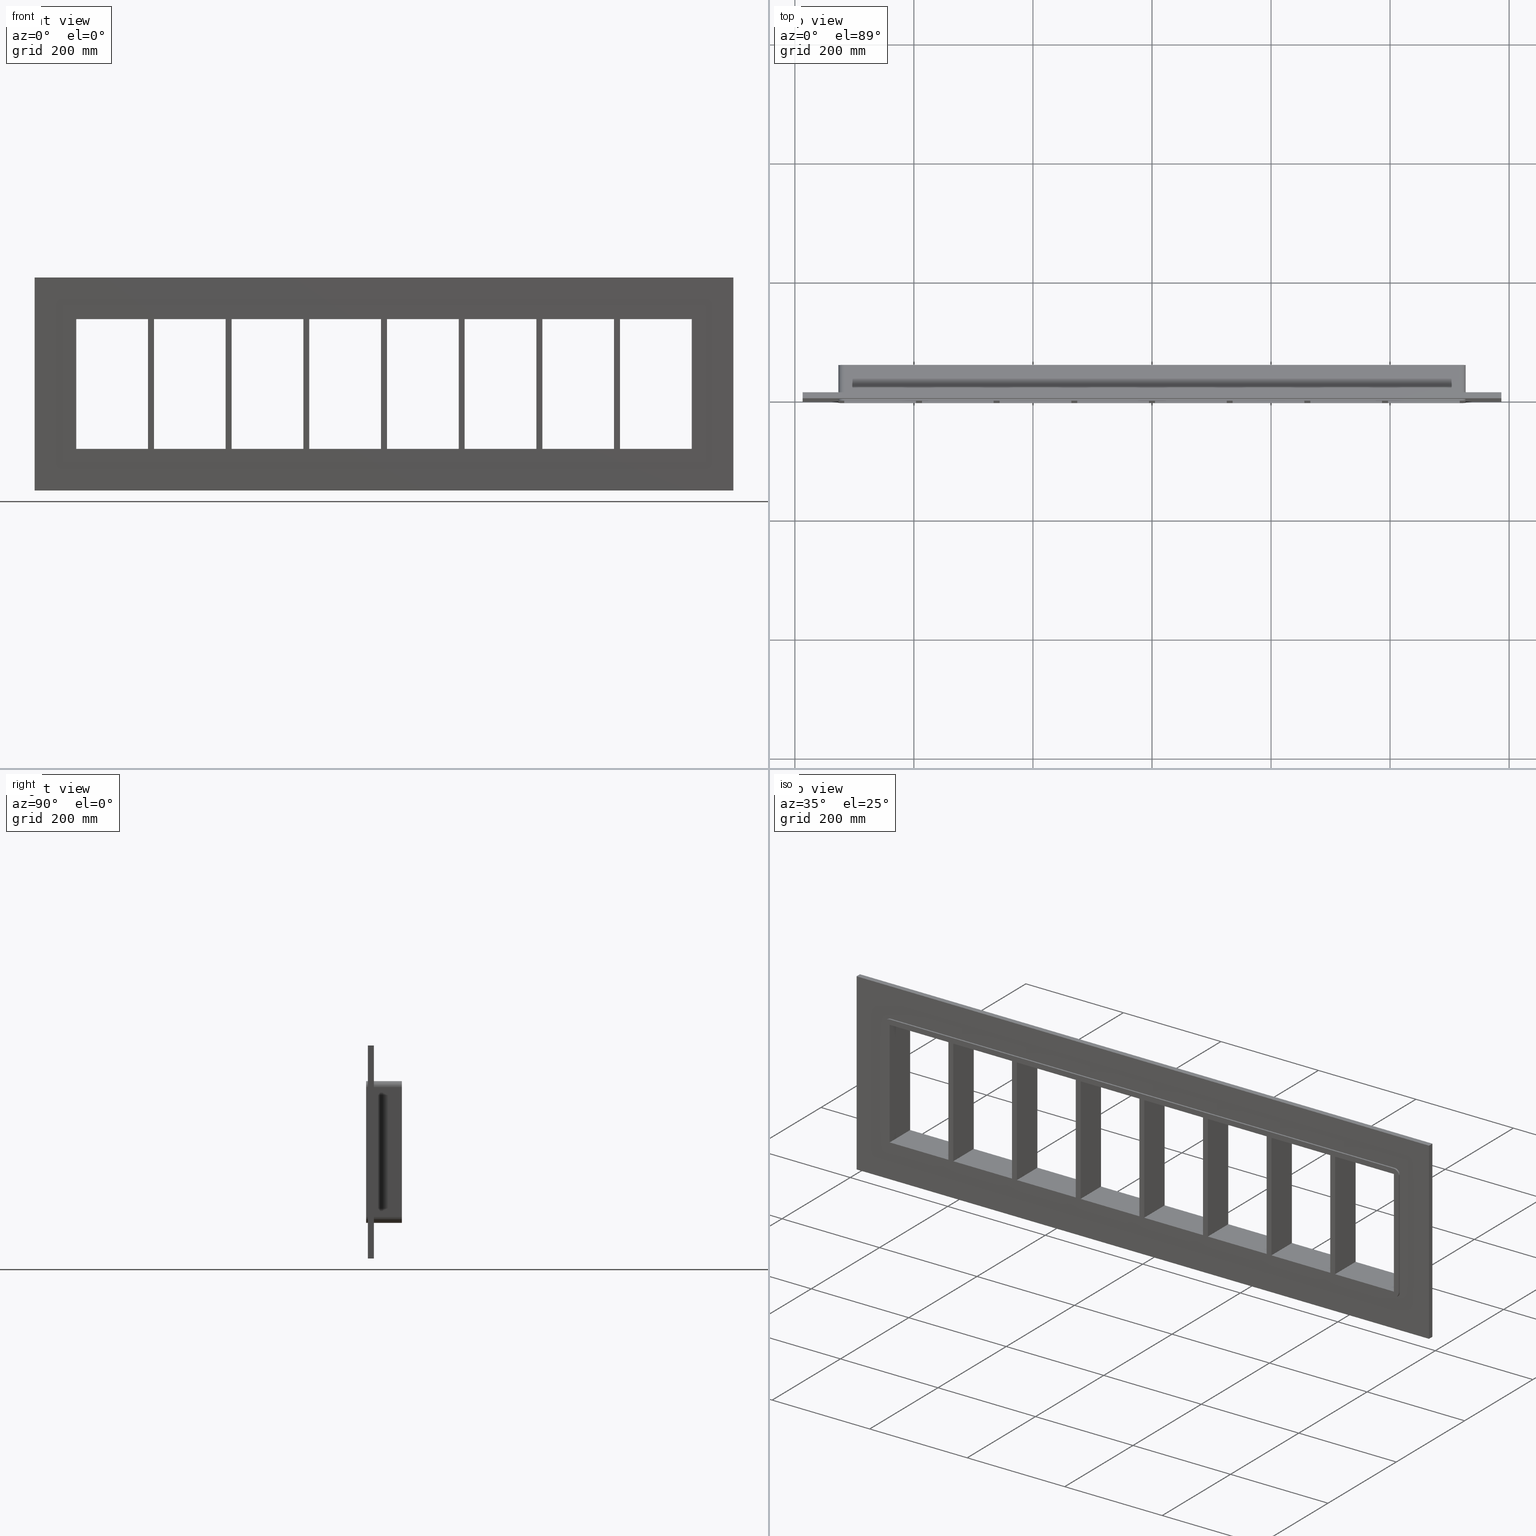
[diagram: canonical four-view strip — front | top / right | iso, engineering-drawing reading convention]
A machine part, canonical four-view strip (front | top / right | iso — engineering-drawing reading convention). The complete STEP part file that produces these views, byte-faithful:
ISO-10303-21;
HEADER;
/****************************************************************
 * Generated by software with PDElib inside                    *
 * PDElib Version v51a, created Wed 11/30/2011                  *
 * ITI Transcendata (http://www.transcendata.com/)              *
 ****************************************************************/
FILE_DESCRIPTION((''),'2;1');
FILE_NAME('C:\\RoxtecConfigurator\\CreatedFiles\\STEP\\SF6X8.stp','2013-06-28T14:27:49',(''),(''),'Autodesk Inventor 2013','Autodesk Inventor 2013','');
FILE_SCHEMA(('AUTOMOTIVE_DESIGN { 1 0 10303 214 1 1 1 1 }'));
ENDSEC;
DATA;
#5=APPLICATION_CONTEXT('automotive design');
#6=APPLICATION_PROTOCOL_DEFINITION('International Standard','automotive_design',2001,#5);
#7=PRODUCT_CONTEXT('',#5,'mechanical');
#8=PRODUCT('roxtec S_SF_G','roxtec S_SF_G',$,(#7));
#9=PRODUCT_RELATED_PRODUCT_CATEGORY('part',$,(#8));
#10=PRODUCT_DEFINITION_FORMATION('',$,#8);
#11=PRODUCT_DEFINITION_CONTEXT('part definition',#5,'design');
#12=PRODUCT_DEFINITION('',$,#10,#11);
#18=(NAMED_UNIT(*)PLANE_ANGLE_UNIT()SI_UNIT($,.RADIAN.));
#19=DIMENSIONAL_EXPONENTS(0.0,0.0,0.0,0.0,0.0,0.0,0.0);
#20=PLANE_ANGLE_MEASURE_WITH_UNIT(PLANE_ANGLE_MEASURE(0.0174532925),#18);
#24=(CONVERSION_BASED_UNIT('DEGREE',#20)NAMED_UNIT(#19)PLANE_ANGLE_UNIT());
#28=(NAMED_UNIT(*)SI_UNIT($,.STERADIAN.)SOLID_ANGLE_UNIT());
#32=(LENGTH_UNIT()NAMED_UNIT(*)SI_UNIT(.MILLI.,.METRE.));
#34=UNCERTAINTY_MEASURE_WITH_UNIT(LENGTH_MEASURE(0.01),#32,'DISTANCE_ACCURACY_VALUE','');
#36=(GEOMETRIC_REPRESENTATION_CONTEXT(3)GLOBAL_UNCERTAINTY_ASSIGNED_CONTEXT((#34))GLOBAL_UNIT_ASSIGNED_CONTEXT((#24,#28,#32))REPRESENTATION_CONTEXT('None','None'));
#37=AXIS2_PLACEMENT_3D('',#38,#39,#40);
#38=CARTESIAN_POINT('',(0.0,0.0,0.0));
#39=DIRECTION('',(0.0,0.0,1.0));
#40=DIRECTION('',(1.0,0.0,0.0));
#41=SHAPE_REPRESENTATION('',(#37),#36);
#42=PRODUCT_DEFINITION_SHAPE('','',#12);
#43=SHAPE_DEFINITION_REPRESENTATION(#42,#41);
#49=(NAMED_UNIT(*)PLANE_ANGLE_UNIT()SI_UNIT($,.RADIAN.));
#50=DIMENSIONAL_EXPONENTS(0.0,0.0,0.0,0.0,0.0,0.0,0.0);
#51=PLANE_ANGLE_MEASURE_WITH_UNIT(PLANE_ANGLE_MEASURE(0.0174532925),#49);
#55=(CONVERSION_BASED_UNIT('DEGREE',#51)NAMED_UNIT(#50)PLANE_ANGLE_UNIT());
#59=(NAMED_UNIT(*)SI_UNIT($,.STERADIAN.)SOLID_ANGLE_UNIT());
#63=(LENGTH_UNIT()NAMED_UNIT(*)SI_UNIT(.MILLI.,.METRE.));
#65=UNCERTAINTY_MEASURE_WITH_UNIT(LENGTH_MEASURE(0.000001),#63,'DISTANCE_ACCURACY_VALUE','');
#67=(GEOMETRIC_REPRESENTATION_CONTEXT(3)GLOBAL_UNCERTAINTY_ASSIGNED_CONTEXT((#65))GLOBAL_UNIT_ASSIGNED_CONTEXT((#55,#59,#63))REPRESENTATION_CONTEXT('','3D'));
#68=CARTESIAN_POINT('',(386.49999999999892,-3.0,-108.99999999999999));
#69=DIRECTION('',(-1.0,0.0,0.0));
#70=DIRECTION('',(0.0,0.0,1.0));
#71=AXIS2_PLACEMENT_3D('',#68,#69,#70);
#72=PLANE('',#71);
#73=CARTESIAN_POINT('',(386.49999999999892,-3.0,-108.99999999999999));
#74=VERTEX_POINT('',#73);
#75=CARTESIAN_POINT('',(386.49999999999875,-3.0,108.99999999999999));
#76=VERTEX_POINT('',#75);
#77=CARTESIAN_POINT('',(386.49999999999892,-3.0,-108.99999999999999));
#78=DIRECTION('',(0.0,0.0,1.0));
#79=VECTOR('',#78,217.99999999999997);
#80=LINE('',#77,#79);
#81=EDGE_CURVE('',#74,#76,#80,.T.);
#82=ORIENTED_EDGE('',*,*,#81,.T.);
#83=CARTESIAN_POINT('',(386.49999999999875,57.0,108.99999999999999));
#84=VERTEX_POINT('',#83);
#85=CARTESIAN_POINT('',(386.49999999999875,57.000000000000007,108.99999999999999));
#86=DIRECTION('',(0.0,-1.0,0.0));
#87=VECTOR('',#86,60.000000000000007);
#88=LINE('',#85,#87);
#89=EDGE_CURVE('',#84,#76,#88,.T.);
#90=ORIENTED_EDGE('',*,*,#89,.F.);
#91=CARTESIAN_POINT('',(386.49999999999892,57.0,-108.99999999999999));
#92=VERTEX_POINT('',#91);
#93=CARTESIAN_POINT('',(386.49999999999892,57.0,-108.99999999999999));
#94=DIRECTION('',(0.0,0.0,1.0));
#95=VECTOR('',#94,217.99999999999997);
#96=LINE('',#93,#95);
#97=EDGE_CURVE('',#92,#84,#96,.T.);
#98=ORIENTED_EDGE('',*,*,#97,.F.);
#99=CARTESIAN_POINT('',(386.49999999999892,-3.0,-108.99999999999999));
#100=DIRECTION('',(0.0,1.0,0.0));
#101=VECTOR('',#100,60.000000000000007);
#102=LINE('',#99,#101);
#103=EDGE_CURVE('',#74,#92,#102,.T.);
#104=ORIENTED_EDGE('',*,*,#103,.F.);
#105=EDGE_LOOP('',(#82,#90,#98,#104));
#106=FACE_OUTER_BOUND('',#105,.T.);
#107=ADVANCED_FACE('',(#106),#72,.T.);
#108=CARTESIAN_POINT('',(396.50000000000375,-3.0,108.99999999999999));
#109=DIRECTION('',(1.0,0.0,0.0));
#110=DIRECTION('',(0.0,0.0,-1.0));
#111=AXIS2_PLACEMENT_3D('',#108,#109,#110);
#112=PLANE('',#111);
#113=CARTESIAN_POINT('',(396.50000000000375,-3.0,108.99999999999999));
#114=VERTEX_POINT('',#113);
#115=CARTESIAN_POINT('',(396.50000000000375,-3.0,-108.99999999998407));
#116=VERTEX_POINT('',#115);
#117=CARTESIAN_POINT('',(396.50000000000375,-3.0,108.99999999999999));
#118=DIRECTION('',(0.0,0.0,-1.0));
#119=VECTOR('',#118,217.99999999998406);
#120=LINE('',#117,#119);
#121=EDGE_CURVE('',#114,#116,#120,.T.);
#122=ORIENTED_EDGE('',*,*,#121,.T.);
#123=CARTESIAN_POINT('',(396.50000000000375,57.0,-108.99999999998407));
#124=VERTEX_POINT('',#123);
#125=CARTESIAN_POINT('',(396.50000000000375,57.000000000000007,-108.99999999999999));
#126=DIRECTION('',(0.0,-1.0,0.0));
#127=VECTOR('',#126,60.000000000000007);
#128=LINE('',#125,#127);
#129=EDGE_CURVE('',#124,#116,#128,.T.);
#130=ORIENTED_EDGE('',*,*,#129,.F.);
#131=CARTESIAN_POINT('',(396.50000000000375,57.0,108.99999999999999));
#132=VERTEX_POINT('',#131);
#133=CARTESIAN_POINT('',(396.50000000000375,57.0,108.99999999999999));
#134=DIRECTION('',(0.0,0.0,-1.0));
#135=VECTOR('',#134,217.99999999998406);
#136=LINE('',#133,#135);
#137=EDGE_CURVE('',#132,#124,#136,.T.);
#138=ORIENTED_EDGE('',*,*,#137,.F.);
#139=CARTESIAN_POINT('',(396.50000000000375,-3.0,108.99999999999999));
#140=DIRECTION('',(0.0,1.0,0.0));
#141=VECTOR('',#140,60.000000000000007);
#142=LINE('',#139,#141);
#143=EDGE_CURVE('',#114,#132,#142,.T.);
#144=ORIENTED_EDGE('',*,*,#143,.F.);
#145=EDGE_LOOP('',(#122,#130,#138,#144));
#146=FACE_OUTER_BOUND('',#145,.T.);
#147=ADVANCED_FACE('',(#146),#112,.T.);
#148=CARTESIAN_POINT('',(255.99999999999878,-3.0,-108.99999999999999));
#149=DIRECTION('',(-1.0,0.0,0.0));
#150=DIRECTION('',(0.0,0.0,1.0));
#151=AXIS2_PLACEMENT_3D('',#148,#149,#150);
#152=PLANE('',#151);
#153=CARTESIAN_POINT('',(255.99999999999878,-3.0,-108.99999999999999));
#154=VERTEX_POINT('',#153);
#155=CARTESIAN_POINT('',(255.99999999999864,-3.0,108.99999999999999));
#156=VERTEX_POINT('',#155);
#157=CARTESIAN_POINT('',(255.99999999999878,-3.0,-108.99999999999999));
#158=DIRECTION('',(0.0,0.0,1.0));
#159=VECTOR('',#158,217.99999999999997);
#160=LINE('',#157,#159);
#161=EDGE_CURVE('',#154,#156,#160,.T.);
#162=ORIENTED_EDGE('',*,*,#161,.T.);
#163=CARTESIAN_POINT('',(255.99999999999864,57.0,108.99999999999999));
#164=VERTEX_POINT('',#163);
#165=CARTESIAN_POINT('',(255.99999999999866,57.000000000000007,108.99999999999999));
#166=DIRECTION('',(0.0,-1.0,0.0));
#167=VECTOR('',#166,60.000000000000007);
#168=LINE('',#165,#167);
#169=EDGE_CURVE('',#164,#156,#168,.T.);
#170=ORIENTED_EDGE('',*,*,#169,.F.);
#171=CARTESIAN_POINT('',(255.99999999999878,57.0,-108.99999999999999));
#172=VERTEX_POINT('',#171);
#173=CARTESIAN_POINT('',(255.99999999999878,57.0,-108.99999999999999));
#174=DIRECTION('',(0.0,0.0,1.0));
#175=VECTOR('',#174,217.99999999999997);
#176=LINE('',#173,#175);
#177=EDGE_CURVE('',#172,#164,#176,.T.);
#178=ORIENTED_EDGE('',*,*,#177,.F.);
#179=CARTESIAN_POINT('',(255.99999999999875,-3.0,-108.99999999999999));
#180=DIRECTION('',(0.0,1.0,0.0));
#181=VECTOR('',#180,60.000000000000007);
#182=LINE('',#179,#181);
#183=EDGE_CURVE('',#154,#172,#182,.T.);
#184=ORIENTED_EDGE('',*,*,#183,.F.);
#185=EDGE_LOOP('',(#162,#170,#178,#184));
#186=FACE_OUTER_BOUND('',#185,.T.);
#187=ADVANCED_FACE('',(#186),#152,.T.);
#188=CARTESIAN_POINT('',(266.00000000000369,-3.0,108.99999999999999));
#189=DIRECTION('',(1.0,0.0,0.0));
#190=DIRECTION('',(0.0,0.0,-1.0));
#191=AXIS2_PLACEMENT_3D('',#188,#189,#190);
#192=PLANE('',#191);
#193=CARTESIAN_POINT('',(266.00000000000369,-3.0,108.99999999999999));
#194=VERTEX_POINT('',#193);
#195=CARTESIAN_POINT('',(266.00000000000369,-3.0,-108.99999999998407));
#196=VERTEX_POINT('',#195);
#197=CARTESIAN_POINT('',(266.00000000000369,-3.0,108.99999999999999));
#198=DIRECTION('',(0.0,0.0,-1.0));
#199=VECTOR('',#198,217.99999999998406);
#200=LINE('',#197,#199);
#201=EDGE_CURVE('',#194,#196,#200,.T.);
#202=ORIENTED_EDGE('',*,*,#201,.T.);
#203=CARTESIAN_POINT('',(266.00000000000369,57.0,-108.99999999998407));
#204=VERTEX_POINT('',#203);
#205=CARTESIAN_POINT('',(266.00000000000369,57.000000000000007,-108.99999999999999));
#206=DIRECTION('',(0.0,-1.0,0.0));
#207=VECTOR('',#206,60.000000000000007);
#208=LINE('',#205,#207);
#209=EDGE_CURVE('',#204,#196,#208,.T.);
#210=ORIENTED_EDGE('',*,*,#209,.F.);
#211=CARTESIAN_POINT('',(266.00000000000369,57.0,108.99999999999999));
#212=VERTEX_POINT('',#211);
#213=CARTESIAN_POINT('',(266.00000000000369,57.0,108.99999999999999));
#214=DIRECTION('',(0.0,0.0,-1.0));
#215=VECTOR('',#214,217.99999999998406);
#216=LINE('',#213,#215);
#217=EDGE_CURVE('',#212,#204,#216,.T.);
#218=ORIENTED_EDGE('',*,*,#217,.F.);
#219=CARTESIAN_POINT('',(266.00000000000364,-3.0,108.99999999999999));
#220=DIRECTION('',(0.0,1.0,0.0));
#221=VECTOR('',#220,60.000000000000007);
#222=LINE('',#219,#221);
#223=EDGE_CURVE('',#194,#212,#222,.T.);
#224=ORIENTED_EDGE('',*,*,#223,.F.);
#225=EDGE_LOOP('',(#202,#210,#218,#224));
#226=FACE_OUTER_BOUND('',#225,.T.);
#227=ADVANCED_FACE('',(#226),#192,.T.);
#228=CARTESIAN_POINT('',(125.49999999999881,-3.0,-108.99999999999999));
#229=DIRECTION('',(-1.0,0.0,0.0));
#230=DIRECTION('',(0.0,0.0,1.0));
#231=AXIS2_PLACEMENT_3D('',#228,#229,#230);
#232=PLANE('',#231);
#233=CARTESIAN_POINT('',(125.49999999999881,-3.0,-108.99999999999999));
#234=VERTEX_POINT('',#233);
#235=CARTESIAN_POINT('',(125.49999999999866,-3.0,108.99999999999999));
#236=VERTEX_POINT('',#235);
#237=CARTESIAN_POINT('',(125.49999999999881,-3.0,-108.99999999999999));
#238=DIRECTION('',(0.0,0.0,1.0));
#239=VECTOR('',#238,217.99999999999997);
#240=LINE('',#237,#239);
#241=EDGE_CURVE('',#234,#236,#240,.T.);
#242=ORIENTED_EDGE('',*,*,#241,.T.);
#243=CARTESIAN_POINT('',(125.49999999999866,57.0,108.99999999999999));
#244=VERTEX_POINT('',#243);
#245=CARTESIAN_POINT('',(125.49999999999869,57.000000000000007,108.99999999999999));
#246=DIRECTION('',(0.0,-1.0,0.0));
#247=VECTOR('',#246,60.000000000000007);
#248=LINE('',#245,#247);
#249=EDGE_CURVE('',#244,#236,#248,.T.);
#250=ORIENTED_EDGE('',*,*,#249,.F.);
#251=CARTESIAN_POINT('',(125.49999999999881,57.0,-108.99999999999999));
#252=VERTEX_POINT('',#251);
#253=CARTESIAN_POINT('',(125.49999999999881,57.0,-108.99999999999999));
#254=DIRECTION('',(0.0,0.0,1.0));
#255=VECTOR('',#254,217.99999999999997);
#256=LINE('',#253,#255);
#257=EDGE_CURVE('',#252,#244,#256,.T.);
#258=ORIENTED_EDGE('',*,*,#257,.F.);
#259=CARTESIAN_POINT('',(125.49999999999876,-3.0,-108.99999999999999));
#260=DIRECTION('',(0.0,1.0,0.0));
#261=VECTOR('',#260,60.000000000000007);
#262=LINE('',#259,#261);
#263=EDGE_CURVE('',#234,#252,#262,.T.);
#264=ORIENTED_EDGE('',*,*,#263,.F.);
#265=EDGE_LOOP('',(#242,#250,#258,#264));
#266=FACE_OUTER_BOUND('',#265,.T.);
#267=ADVANCED_FACE('',(#266),#232,.T.);
#268=CARTESIAN_POINT('',(135.50000000000369,-3.0,108.99999999999999));
#269=DIRECTION('',(1.0,0.0,0.0));
#270=DIRECTION('',(0.0,0.0,-1.0));
#271=AXIS2_PLACEMENT_3D('',#268,#269,#270);
#272=PLANE('',#271);
#273=CARTESIAN_POINT('',(135.50000000000369,-3.0,108.99999999999999));
#274=VERTEX_POINT('',#273);
#275=CARTESIAN_POINT('',(135.50000000000369,-3.0,-108.99999999998407));
#276=VERTEX_POINT('',#275);
#277=CARTESIAN_POINT('',(135.50000000000369,-3.0,108.99999999999999));
#278=DIRECTION('',(0.0,0.0,-1.0));
#279=VECTOR('',#278,217.99999999998406);
#280=LINE('',#277,#279);
#281=EDGE_CURVE('',#274,#276,#280,.T.);
#282=ORIENTED_EDGE('',*,*,#281,.T.);
#283=CARTESIAN_POINT('',(135.50000000000369,57.0,-108.99999999998407));
#284=VERTEX_POINT('',#283);
#285=CARTESIAN_POINT('',(135.50000000000375,57.000000000000007,-108.99999999999999));
#286=DIRECTION('',(0.0,-1.0,0.0));
#287=VECTOR('',#286,60.000000000000007);
#288=LINE('',#285,#287);
#289=EDGE_CURVE('',#284,#276,#288,.T.);
#290=ORIENTED_EDGE('',*,*,#289,.F.);
#291=CARTESIAN_POINT('',(135.50000000000369,57.0,108.99999999999999));
#292=VERTEX_POINT('',#291);
#293=CARTESIAN_POINT('',(135.50000000000369,57.0,108.99999999999999));
#294=DIRECTION('',(0.0,0.0,-1.0));
#295=VECTOR('',#294,217.99999999998406);
#296=LINE('',#293,#295);
#297=EDGE_CURVE('',#292,#284,#296,.T.);
#298=ORIENTED_EDGE('',*,*,#297,.F.);
#299=CARTESIAN_POINT('',(135.50000000000367,-3.0,108.99999999999999));
#300=DIRECTION('',(0.0,1.0,0.0));
#301=VECTOR('',#300,60.000000000000007);
#302=LINE('',#299,#301);
#303=EDGE_CURVE('',#274,#292,#302,.T.);
#304=ORIENTED_EDGE('',*,*,#303,.F.);
#305=EDGE_LOOP('',(#282,#290,#298,#304));
#306=FACE_OUTER_BOUND('',#305,.T.);
#307=ADVANCED_FACE('',(#306),#272,.T.);
#308=CARTESIAN_POINT('',(-5.000000000001208,-3.0,-108.99999999999999));
#309=DIRECTION('',(-1.0,0.0,0.0));
#310=DIRECTION('',(0.0,0.0,1.0));
#311=AXIS2_PLACEMENT_3D('',#308,#309,#310);
#312=PLANE('',#311);
#313=CARTESIAN_POINT('',(-5.000000000001208,-3.0,-108.99999999999999));
#314=VERTEX_POINT('',#313);
#315=CARTESIAN_POINT('',(-5.00000000000135,-3.0,108.99999999999999));
#316=VERTEX_POINT('',#315);
#317=CARTESIAN_POINT('',(-5.000000000001208,-3.0,-108.99999999999999));
#318=DIRECTION('',(0.0,0.0,1.0));
#319=VECTOR('',#318,217.99999999999997);
#320=LINE('',#317,#319);
#321=EDGE_CURVE('',#314,#316,#320,.T.);
#322=ORIENTED_EDGE('',*,*,#321,.T.);
#323=CARTESIAN_POINT('',(-5.00000000000135,57.0,108.99999999999999));
#324=VERTEX_POINT('',#323);
#325=CARTESIAN_POINT('',(-5.00000000000135,57.000000000000007,108.99999999999999));
#326=DIRECTION('',(0.0,-1.0,0.0));
#327=VECTOR('',#326,60.000000000000007);
#328=LINE('',#325,#327);
#329=EDGE_CURVE('',#324,#316,#328,.T.);
#330=ORIENTED_EDGE('',*,*,#329,.F.);
#331=CARTESIAN_POINT('',(-5.000000000001208,57.0,-108.99999999999999));
#332=VERTEX_POINT('',#331);
#333=CARTESIAN_POINT('',(-5.000000000001208,57.0,-108.99999999999999));
#334=DIRECTION('',(0.0,0.0,1.0));
#335=VECTOR('',#334,217.99999999999997);
#336=LINE('',#333,#335);
#337=EDGE_CURVE('',#332,#324,#336,.T.);
#338=ORIENTED_EDGE('',*,*,#337,.F.);
#339=CARTESIAN_POINT('',(-5.000000000001208,-3.0,-108.99999999999999));
#340=DIRECTION('',(0.0,1.0,0.0));
#341=VECTOR('',#340,60.000000000000007);
#342=LINE('',#339,#341);
#343=EDGE_CURVE('',#314,#332,#342,.T.);
#344=ORIENTED_EDGE('',*,*,#343,.F.);
#345=EDGE_LOOP('',(#322,#330,#338,#344));
#346=FACE_OUTER_BOUND('',#345,.T.);
#347=ADVANCED_FACE('',(#346),#312,.T.);
#348=CARTESIAN_POINT('',(5.000000000003695,-3.0,108.99999999999999));
#349=DIRECTION('',(1.0,0.0,0.0));
#350=DIRECTION('',(0.0,0.0,-1.0));
#351=AXIS2_PLACEMENT_3D('',#348,#349,#350);
#352=PLANE('',#351);
#353=CARTESIAN_POINT('',(5.000000000003695,-3.0,108.99999999999999));
#354=VERTEX_POINT('',#353);
#355=CARTESIAN_POINT('',(5.000000000003695,-3.0,-108.99999999998407));
#356=VERTEX_POINT('',#355);
#357=CARTESIAN_POINT('',(5.000000000003695,-3.0,108.99999999999999));
#358=DIRECTION('',(0.0,0.0,-1.0));
#359=VECTOR('',#358,217.99999999998406);
#360=LINE('',#357,#359);
#361=EDGE_CURVE('',#354,#356,#360,.T.);
#362=ORIENTED_EDGE('',*,*,#361,.T.);
#363=CARTESIAN_POINT('',(5.000000000003695,57.0,-108.99999999998407));
#364=VERTEX_POINT('',#363);
#365=CARTESIAN_POINT('',(5.000000000003695,57.000000000000007,-108.99999999999999));
#366=DIRECTION('',(0.0,-1.0,0.0));
#367=VECTOR('',#366,60.000000000000007);
#368=LINE('',#365,#367);
#369=EDGE_CURVE('',#364,#356,#368,.T.);
#370=ORIENTED_EDGE('',*,*,#369,.F.);
#371=CARTESIAN_POINT('',(5.000000000003695,57.0,108.99999999999999));
#372=VERTEX_POINT('',#371);
#373=CARTESIAN_POINT('',(5.000000000003695,57.0,108.99999999999999));
#374=DIRECTION('',(0.0,0.0,-1.0));
#375=VECTOR('',#374,217.99999999998406);
#376=LINE('',#373,#375);
#377=EDGE_CURVE('',#372,#364,#376,.T.);
#378=ORIENTED_EDGE('',*,*,#377,.F.);
#379=CARTESIAN_POINT('',(5.000000000003695,-3.0,108.99999999999999));
#380=DIRECTION('',(0.0,1.0,0.0));
#381=VECTOR('',#380,60.000000000000007);
#382=LINE('',#379,#381);
#383=EDGE_CURVE('',#354,#372,#382,.T.);
#384=ORIENTED_EDGE('',*,*,#383,.F.);
#385=EDGE_LOOP('',(#362,#370,#378,#384));
#386=FACE_OUTER_BOUND('',#385,.T.);
#387=ADVANCED_FACE('',(#386),#352,.T.);
#388=CARTESIAN_POINT('',(-135.50000000000125,-3.0,-108.99999999999999));
#389=DIRECTION('',(-1.0,0.0,0.0));
#390=DIRECTION('',(0.0,0.0,1.0));
#391=AXIS2_PLACEMENT_3D('',#388,#389,#390);
#392=PLANE('',#391);
#393=CARTESIAN_POINT('',(-135.50000000000125,-3.0,-108.99999999999999));
#394=VERTEX_POINT('',#393);
#395=CARTESIAN_POINT('',(-135.50000000000139,-3.0,108.99999999999999));
#396=VERTEX_POINT('',#395);
#397=CARTESIAN_POINT('',(-135.50000000000125,-3.0,-108.99999999999999));
#398=DIRECTION('',(0.0,0.0,1.0));
#399=VECTOR('',#398,217.99999999999997);
#400=LINE('',#397,#399);
#401=EDGE_CURVE('',#394,#396,#400,.T.);
#402=ORIENTED_EDGE('',*,*,#401,.T.);
#403=CARTESIAN_POINT('',(-135.50000000000139,57.0,108.99999999999999));
#404=VERTEX_POINT('',#403);
#405=CARTESIAN_POINT('',(-135.50000000000139,57.000000000000007,108.99999999999999));
#406=DIRECTION('',(0.0,-1.0,0.0));
#407=VECTOR('',#406,60.000000000000007);
#408=LINE('',#405,#407);
#409=EDGE_CURVE('',#404,#396,#408,.T.);
#410=ORIENTED_EDGE('',*,*,#409,.F.);
#411=CARTESIAN_POINT('',(-135.50000000000125,57.0,-108.99999999999999));
#412=VERTEX_POINT('',#411);
#413=CARTESIAN_POINT('',(-135.50000000000125,57.0,-108.99999999999999));
#414=DIRECTION('',(0.0,0.0,1.0));
#415=VECTOR('',#414,217.99999999999997);
#416=LINE('',#413,#415);
#417=EDGE_CURVE('',#412,#404,#416,.T.);
#418=ORIENTED_EDGE('',*,*,#417,.F.);
#419=CARTESIAN_POINT('',(-135.50000000000122,-3.0,-108.99999999999999));
#420=DIRECTION('',(0.0,1.0,0.0));
#421=VECTOR('',#420,60.000000000000007);
#422=LINE('',#419,#421);
#423=EDGE_CURVE('',#394,#412,#422,.T.);
#424=ORIENTED_EDGE('',*,*,#423,.F.);
#425=EDGE_LOOP('',(#402,#410,#418,#424));
#426=FACE_OUTER_BOUND('',#425,.T.);
#427=ADVANCED_FACE('',(#426),#392,.T.);
#428=CARTESIAN_POINT('',(-125.49999999999635,-3.0,108.99999999999999));
#429=DIRECTION('',(1.0,0.0,0.0));
#430=DIRECTION('',(0.0,0.0,-1.0));
#431=AXIS2_PLACEMENT_3D('',#428,#429,#430);
#432=PLANE('',#431);
#433=CARTESIAN_POINT('',(-125.49999999999635,-3.0,108.99999999999999));
#434=VERTEX_POINT('',#433);
#435=CARTESIAN_POINT('',(-125.49999999999635,-3.0,-108.99999999998407));
#436=VERTEX_POINT('',#435);
#437=CARTESIAN_POINT('',(-125.49999999999635,-3.0,108.99999999999999));
#438=DIRECTION('',(0.0,0.0,-1.0));
#439=VECTOR('',#438,217.99999999998406);
#440=LINE('',#437,#439);
#441=EDGE_CURVE('',#434,#436,#440,.T.);
#442=ORIENTED_EDGE('',*,*,#441,.T.);
#443=CARTESIAN_POINT('',(-125.49999999999635,57.0,-108.99999999998407));
#444=VERTEX_POINT('',#443);
#445=CARTESIAN_POINT('',(-125.49999999999635,57.000000000000007,-108.99999999999999));
#446=DIRECTION('',(0.0,-1.0,0.0));
#447=VECTOR('',#446,60.000000000000007);
#448=LINE('',#445,#447);
#449=EDGE_CURVE('',#444,#436,#448,.T.);
#450=ORIENTED_EDGE('',*,*,#449,.F.);
#451=CARTESIAN_POINT('',(-125.49999999999635,57.0,108.99999999999999));
#452=VERTEX_POINT('',#451);
#453=CARTESIAN_POINT('',(-125.49999999999635,57.0,108.99999999999999));
#454=DIRECTION('',(0.0,0.0,-1.0));
#455=VECTOR('',#454,217.99999999998406);
#456=LINE('',#453,#455);
#457=EDGE_CURVE('',#452,#444,#456,.T.);
#458=ORIENTED_EDGE('',*,*,#457,.F.);
#459=CARTESIAN_POINT('',(-125.49999999999631,-3.0,108.99999999999999));
#460=DIRECTION('',(0.0,1.0,0.0));
#461=VECTOR('',#460,60.000000000000007);
#462=LINE('',#459,#461);
#463=EDGE_CURVE('',#434,#452,#462,.T.);
#464=ORIENTED_EDGE('',*,*,#463,.F.);
#465=EDGE_LOOP('',(#442,#450,#458,#464));
#466=FACE_OUTER_BOUND('',#465,.T.);
#467=ADVANCED_FACE('',(#466),#432,.T.);
#468=CARTESIAN_POINT('',(-266.00000000000125,-3.0,-108.99999999999999));
#469=DIRECTION('',(-1.0,0.0,0.0));
#470=DIRECTION('',(0.0,0.0,1.0));
#471=AXIS2_PLACEMENT_3D('',#468,#469,#470);
#472=PLANE('',#471);
#473=CARTESIAN_POINT('',(-266.00000000000125,-3.0,-108.99999999999999));
#474=VERTEX_POINT('',#473);
#475=CARTESIAN_POINT('',(-266.00000000000142,-3.0,108.99999999999999));
#476=VERTEX_POINT('',#475);
#477=CARTESIAN_POINT('',(-266.00000000000125,-3.0,-108.99999999999999));
#478=DIRECTION('',(0.0,0.0,1.0));
#479=VECTOR('',#478,217.99999999999997);
#480=LINE('',#477,#479);
#481=EDGE_CURVE('',#474,#476,#480,.T.);
#482=ORIENTED_EDGE('',*,*,#481,.T.);
#483=CARTESIAN_POINT('',(-266.00000000000142,57.0,108.99999999999999));
#484=VERTEX_POINT('',#483);
#485=CARTESIAN_POINT('',(-266.00000000000136,57.000000000000007,108.99999999999999));
#486=DIRECTION('',(0.0,-1.0,0.0));
#487=VECTOR('',#486,60.000000000000007);
#488=LINE('',#485,#487);
#489=EDGE_CURVE('',#484,#476,#488,.T.);
#490=ORIENTED_EDGE('',*,*,#489,.F.);
#491=CARTESIAN_POINT('',(-266.00000000000125,57.0,-108.99999999999999));
#492=VERTEX_POINT('',#491);
#493=CARTESIAN_POINT('',(-266.00000000000125,57.0,-108.99999999999999));
#494=DIRECTION('',(0.0,0.0,1.0));
#495=VECTOR('',#494,217.99999999999997);
#496=LINE('',#493,#495);
#497=EDGE_CURVE('',#492,#484,#496,.T.);
#498=ORIENTED_EDGE('',*,*,#497,.F.);
#499=CARTESIAN_POINT('',(-266.00000000000131,-3.0,-108.99999999999999));
#500=DIRECTION('',(0.0,1.0,0.0));
#501=VECTOR('',#500,60.000000000000007);
#502=LINE('',#499,#501);
#503=EDGE_CURVE('',#474,#492,#502,.T.);
#504=ORIENTED_EDGE('',*,*,#503,.F.);
#505=EDGE_LOOP('',(#482,#490,#498,#504));
#506=FACE_OUTER_BOUND('',#505,.T.);
#507=ADVANCED_FACE('',(#506),#472,.T.);
#508=CARTESIAN_POINT('',(-255.99999999999636,-3.0,108.99999999999999));
#509=DIRECTION('',(1.0,0.0,0.0));
#510=DIRECTION('',(0.0,0.0,-1.0));
#511=AXIS2_PLACEMENT_3D('',#508,#509,#510);
#512=PLANE('',#511);
#513=CARTESIAN_POINT('',(-255.99999999999636,-3.0,108.99999999999999));
#514=VERTEX_POINT('',#513);
#515=CARTESIAN_POINT('',(-255.99999999999636,-3.0,-108.99999999998407));
#516=VERTEX_POINT('',#515);
#517=CARTESIAN_POINT('',(-255.99999999999636,-3.0,108.99999999999999));
#518=DIRECTION('',(0.0,0.0,-1.0));
#519=VECTOR('',#518,217.99999999998406);
#520=LINE('',#517,#519);
#521=EDGE_CURVE('',#514,#516,#520,.T.);
#522=ORIENTED_EDGE('',*,*,#521,.T.);
#523=CARTESIAN_POINT('',(-255.99999999999636,57.0,-108.99999999998407));
#524=VERTEX_POINT('',#523);
#525=CARTESIAN_POINT('',(-255.99999999999631,57.000000000000007,-108.99999999999999));
#526=DIRECTION('',(0.0,-1.0,0.0));
#527=VECTOR('',#526,60.000000000000007);
#528=LINE('',#525,#527);
#529=EDGE_CURVE('',#524,#516,#528,.T.);
#530=ORIENTED_EDGE('',*,*,#529,.F.);
#531=CARTESIAN_POINT('',(-255.99999999999636,57.0,108.99999999999999));
#532=VERTEX_POINT('',#531);
#533=CARTESIAN_POINT('',(-255.99999999999636,57.0,108.99999999999999));
#534=DIRECTION('',(0.0,0.0,-1.0));
#535=VECTOR('',#534,217.99999999998406);
#536=LINE('',#533,#535);
#537=EDGE_CURVE('',#532,#524,#536,.T.);
#538=ORIENTED_EDGE('',*,*,#537,.F.);
#539=CARTESIAN_POINT('',(-255.99999999999639,-3.0,108.99999999999999));
#540=DIRECTION('',(0.0,1.0,0.0));
#541=VECTOR('',#540,60.000000000000007);
#542=LINE('',#539,#541);
#543=EDGE_CURVE('',#514,#532,#542,.T.);
#544=ORIENTED_EDGE('',*,*,#543,.F.);
#545=EDGE_LOOP('',(#522,#530,#538,#544));
#546=FACE_OUTER_BOUND('',#545,.T.);
#547=ADVANCED_FACE('',(#546),#512,.T.);
#548=CARTESIAN_POINT('',(517.0,0.0,-108.99999999999999));
#549=DIRECTION('',(0.0,0.0,-1.0));
#550=DIRECTION('',(-1.0,0.0,0.0));
#551=AXIS2_PLACEMENT_3D('',#548,#549,#550);
#552=PLANE('',#551);
#553=ORIENTED_EDGE('',*,*,#503,.T.);
#554=CARTESIAN_POINT('',(-386.49999999999636,57.0,-108.99999999998407));
#555=VERTEX_POINT('',#554);
#556=CARTESIAN_POINT('',(-386.49999999999642,57.0,-108.99999999999999));
#557=DIRECTION('',(1.0,0.0,0.0));
#558=VECTOR('',#557,120.49999999999523);
#559=LINE('',#556,#558);
#560=EDGE_CURVE('',#555,#492,#559,.T.);
#561=ORIENTED_EDGE('',*,*,#560,.F.);
#562=CARTESIAN_POINT('',(-386.49999999999636,-3.0,-108.99999999998407));
#563=VERTEX_POINT('',#562);
#564=CARTESIAN_POINT('',(-386.49999999999636,57.000000000000007,-108.99999999999999));
#565=DIRECTION('',(0.0,-1.0,0.0));
#566=VECTOR('',#565,60.000000000000007);
#567=LINE('',#564,#566);
#568=EDGE_CURVE('',#555,#563,#567,.T.);
#569=ORIENTED_EDGE('',*,*,#568,.T.);
#570=CARTESIAN_POINT('',(-266.00000000000119,-3.0,-108.99999999999999));
#571=DIRECTION('',(-1.0,0.0,0.0));
#572=VECTOR('',#571,120.49999999999523);
#573=LINE('',#570,#572);
#574=EDGE_CURVE('',#474,#563,#573,.T.);
#575=ORIENTED_EDGE('',*,*,#574,.F.);
#576=EDGE_LOOP('',(#553,#561,#569,#575));
#577=FACE_OUTER_BOUND('',#576,.T.);
#578=ADVANCED_FACE('',(#577),#552,.F.);
#579=CARTESIAN_POINT('',(517.0,0.0,-108.99999999999999));
#580=DIRECTION('',(0.0,0.0,-1.0));
#581=DIRECTION('',(-1.0,0.0,0.0));
#582=AXIS2_PLACEMENT_3D('',#579,#580,#581);
#583=PLANE('',#582);
#584=ORIENTED_EDGE('',*,*,#423,.T.);
#585=CARTESIAN_POINT('',(-255.99999999999642,57.0,-108.99999999999999));
#586=DIRECTION('',(1.0,0.0,0.0));
#587=VECTOR('',#586,120.49999999999517);
#588=LINE('',#585,#587);
#589=EDGE_CURVE('',#524,#412,#588,.T.);
#590=ORIENTED_EDGE('',*,*,#589,.F.);
#591=ORIENTED_EDGE('',*,*,#529,.T.);
#592=CARTESIAN_POINT('',(-135.50000000000125,-3.0,-108.99999999999999));
#593=DIRECTION('',(-1.0,0.0,0.0));
#594=VECTOR('',#593,120.49999999999517);
#595=LINE('',#592,#594);
#596=EDGE_CURVE('',#394,#516,#595,.T.);
#597=ORIENTED_EDGE('',*,*,#596,.F.);
#598=EDGE_LOOP('',(#584,#590,#591,#597));
#599=FACE_OUTER_BOUND('',#598,.T.);
#600=ADVANCED_FACE('',(#599),#583,.F.);
#601=CARTESIAN_POINT('',(517.0,0.0,-108.99999999999999));
#602=DIRECTION('',(0.0,0.0,-1.0));
#603=DIRECTION('',(-1.0,0.0,0.0));
#604=AXIS2_PLACEMENT_3D('',#601,#602,#603);
#605=PLANE('',#604);
#606=ORIENTED_EDGE('',*,*,#343,.T.);
#607=CARTESIAN_POINT('',(-125.49999999999636,57.0,-108.99999999999999));
#608=DIRECTION('',(1.0,0.0,0.0));
#609=VECTOR('',#608,120.49999999999517);
#610=LINE('',#607,#609);
#611=EDGE_CURVE('',#444,#332,#610,.T.);
#612=ORIENTED_EDGE('',*,*,#611,.F.);
#613=ORIENTED_EDGE('',*,*,#449,.T.);
#614=CARTESIAN_POINT('',(-5.000000000001194,-3.0,-108.99999999999999));
#615=DIRECTION('',(-1.0,0.0,0.0));
#616=VECTOR('',#615,120.49999999999517);
#617=LINE('',#614,#616);
#618=EDGE_CURVE('',#314,#436,#617,.T.);
#619=ORIENTED_EDGE('',*,*,#618,.F.);
#620=EDGE_LOOP('',(#606,#612,#613,#619));
#621=FACE_OUTER_BOUND('',#620,.T.);
#622=ADVANCED_FACE('',(#621),#605,.F.);
#623=CARTESIAN_POINT('',(517.0,0.0,-108.99999999999999));
#624=DIRECTION('',(0.0,0.0,-1.0));
#625=DIRECTION('',(-1.0,0.0,0.0));
#626=AXIS2_PLACEMENT_3D('',#623,#624,#625);
#627=PLANE('',#626);
#628=ORIENTED_EDGE('',*,*,#263,.T.);
#629=CARTESIAN_POINT('',(5.000000000003695,57.0,-108.99999999999999));
#630=DIRECTION('',(1.0,0.0,0.0));
#631=VECTOR('',#630,120.49999999999511);
#632=LINE('',#629,#631);
#633=EDGE_CURVE('',#364,#252,#632,.T.);
#634=ORIENTED_EDGE('',*,*,#633,.F.);
#635=ORIENTED_EDGE('',*,*,#369,.T.);
#636=CARTESIAN_POINT('',(125.49999999999881,-3.0,-108.99999999999999));
#637=DIRECTION('',(-1.0,0.0,0.0));
#638=VECTOR('',#637,120.49999999999511);
#639=LINE('',#636,#638);
#640=EDGE_CURVE('',#234,#356,#639,.T.);
#641=ORIENTED_EDGE('',*,*,#640,.F.);
#642=EDGE_LOOP('',(#628,#634,#635,#641));
#643=FACE_OUTER_BOUND('',#642,.T.);
#644=ADVANCED_FACE('',(#643),#627,.F.);
#645=CARTESIAN_POINT('',(517.0,0.0,-108.99999999999999));
#646=DIRECTION('',(0.0,0.0,-1.0));
#647=DIRECTION('',(-1.0,0.0,0.0));
#648=AXIS2_PLACEMENT_3D('',#645,#646,#647);
#649=PLANE('',#648);
#650=ORIENTED_EDGE('',*,*,#183,.T.);
#651=CARTESIAN_POINT('',(135.50000000000369,57.0,-108.99999999999999));
#652=DIRECTION('',(1.0,0.0,0.0));
#653=VECTOR('',#652,120.49999999999508);
#654=LINE('',#651,#653);
#655=EDGE_CURVE('',#284,#172,#654,.T.);
#656=ORIENTED_EDGE('',*,*,#655,.F.);
#657=ORIENTED_EDGE('',*,*,#289,.T.);
#658=CARTESIAN_POINT('',(255.99999999999878,-3.0,-108.99999999999999));
#659=DIRECTION('',(-1.0,0.0,0.0));
#660=VECTOR('',#659,120.49999999999508);
#661=LINE('',#658,#660);
#662=EDGE_CURVE('',#154,#276,#661,.T.);
#663=ORIENTED_EDGE('',*,*,#662,.F.);
#664=EDGE_LOOP('',(#650,#656,#657,#663));
#665=FACE_OUTER_BOUND('',#664,.T.);
#666=ADVANCED_FACE('',(#665),#649,.F.);
#667=CARTESIAN_POINT('',(517.0,0.0,-108.99999999999999));
#668=DIRECTION('',(0.0,0.0,-1.0));
#669=DIRECTION('',(-1.0,0.0,0.0));
#670=AXIS2_PLACEMENT_3D('',#667,#668,#669);
#671=PLANE('',#670);
#672=ORIENTED_EDGE('',*,*,#103,.T.);
#673=CARTESIAN_POINT('',(266.00000000000369,57.0,-108.99999999999999));
#674=DIRECTION('',(1.0,0.0,0.0));
#675=VECTOR('',#674,120.49999999999523);
#676=LINE('',#673,#675);
#677=EDGE_CURVE('',#204,#92,#676,.T.);
#678=ORIENTED_EDGE('',*,*,#677,.F.);
#679=ORIENTED_EDGE('',*,*,#209,.T.);
#680=CARTESIAN_POINT('',(386.49999999999892,-3.0,-108.99999999999999));
#681=DIRECTION('',(-1.0,0.0,0.0));
#682=VECTOR('',#681,120.49999999999523);
#683=LINE('',#680,#682);
#684=EDGE_CURVE('',#74,#196,#683,.T.);
#685=ORIENTED_EDGE('',*,*,#684,.F.);
#686=EDGE_LOOP('',(#672,#678,#679,#685));
#687=FACE_OUTER_BOUND('',#686,.T.);
#688=ADVANCED_FACE('',(#687),#671,.F.);
#689=CARTESIAN_POINT('',(517.0,0.0,-108.99999999999999));
#690=DIRECTION('',(0.0,0.0,-1.0));
#691=DIRECTION('',(-1.0,0.0,0.0));
#692=AXIS2_PLACEMENT_3D('',#689,#690,#691);
#693=PLANE('',#692);
#694=ORIENTED_EDGE('',*,*,#129,.T.);
#695=CARTESIAN_POINT('',(517.0,-3.0,-108.99999999999999));
#696=VERTEX_POINT('',#695);
#697=CARTESIAN_POINT('',(517.0,-3.0,-108.99999999999999));
#698=DIRECTION('',(-1.0,0.0,0.0));
#699=VECTOR('',#698,120.49999999999625);
#700=LINE('',#697,#699);
#701=EDGE_CURVE('',#696,#116,#700,.T.);
#702=ORIENTED_EDGE('',*,*,#701,.F.);
#703=CARTESIAN_POINT('',(517.0,57.0,-108.99999999999999));
#704=VERTEX_POINT('',#703);
#705=CARTESIAN_POINT('',(517.0,57.0,-108.99999999999999));
#706=DIRECTION('',(0.0,-1.0,0.0));
#707=VECTOR('',#706,60.0);
#708=LINE('',#705,#707);
#709=EDGE_CURVE('',#704,#696,#708,.T.);
#710=ORIENTED_EDGE('',*,*,#709,.F.);
#711=CARTESIAN_POINT('',(396.50000000000375,57.0,-108.99999999999999));
#712=DIRECTION('',(1.0,0.0,0.0));
#713=VECTOR('',#712,120.49999999999625);
#714=LINE('',#711,#713);
#715=EDGE_CURVE('',#124,#704,#714,.T.);
#716=ORIENTED_EDGE('',*,*,#715,.F.);
#717=EDGE_LOOP('',(#694,#702,#710,#716));
#718=FACE_OUTER_BOUND('',#717,.T.);
#719=ADVANCED_FACE('',(#718),#693,.F.);
#720=CARTESIAN_POINT('',(-517.0,0.0,108.99999999999999));
#721=DIRECTION('',(0.0,0.0,1.0));
#722=DIRECTION('',(1.0,0.0,0.0));
#723=AXIS2_PLACEMENT_3D('',#720,#721,#722);
#724=PLANE('',#723);
#725=ORIENTED_EDGE('',*,*,#489,.T.);
#726=CARTESIAN_POINT('',(-386.49999999999636,-3.0,108.99999999999999));
#727=VERTEX_POINT('',#726);
#728=CARTESIAN_POINT('',(-386.49999999999636,-3.0,108.99999999999999));
#729=DIRECTION('',(1.0,0.0,0.0));
#730=VECTOR('',#729,120.49999999999494);
#731=LINE('',#728,#730);
#732=EDGE_CURVE('',#727,#476,#731,.T.);
#733=ORIENTED_EDGE('',*,*,#732,.F.);
#734=CARTESIAN_POINT('',(-386.49999999999636,57.0,108.99999999999999));
#735=VERTEX_POINT('',#734);
#736=CARTESIAN_POINT('',(-386.49999999999636,-3.0,108.99999999999999));
#737=DIRECTION('',(0.0,1.0,0.0));
#738=VECTOR('',#737,60.000000000000007);
#739=LINE('',#736,#738);
#740=EDGE_CURVE('',#727,#735,#739,.T.);
#741=ORIENTED_EDGE('',*,*,#740,.T.);
#742=CARTESIAN_POINT('',(-266.00000000000142,57.0,108.99999999999999));
#743=DIRECTION('',(-1.0,0.0,0.0));
#744=VECTOR('',#743,120.49999999999494);
#745=LINE('',#742,#744);
#746=EDGE_CURVE('',#484,#735,#745,.T.);
#747=ORIENTED_EDGE('',*,*,#746,.F.);
#748=EDGE_LOOP('',(#725,#733,#741,#747));
#749=FACE_OUTER_BOUND('',#748,.T.);
#750=ADVANCED_FACE('',(#749),#724,.F.);
#751=CARTESIAN_POINT('',(-517.0,0.0,108.99999999999999));
#752=DIRECTION('',(0.0,0.0,1.0));
#753=DIRECTION('',(1.0,0.0,0.0));
#754=AXIS2_PLACEMENT_3D('',#751,#752,#753);
#755=PLANE('',#754);
#756=ORIENTED_EDGE('',*,*,#409,.T.);
#757=CARTESIAN_POINT('',(-255.99999999999636,-3.0,108.99999999999999));
#758=DIRECTION('',(1.0,0.0,0.0));
#759=VECTOR('',#758,120.49999999999497);
#760=LINE('',#757,#759);
#761=EDGE_CURVE('',#514,#396,#760,.T.);
#762=ORIENTED_EDGE('',*,*,#761,.F.);
#763=ORIENTED_EDGE('',*,*,#543,.T.);
#764=CARTESIAN_POINT('',(-135.50000000000139,57.0,108.99999999999999));
#765=DIRECTION('',(-1.0,0.0,0.0));
#766=VECTOR('',#765,120.49999999999497);
#767=LINE('',#764,#766);
#768=EDGE_CURVE('',#404,#532,#767,.T.);
#769=ORIENTED_EDGE('',*,*,#768,.F.);
#770=EDGE_LOOP('',(#756,#762,#763,#769));
#771=FACE_OUTER_BOUND('',#770,.T.);
#772=ADVANCED_FACE('',(#771),#755,.F.);
#773=CARTESIAN_POINT('',(-517.0,0.0,108.99999999999999));
#774=DIRECTION('',(0.0,0.0,1.0));
#775=DIRECTION('',(1.0,0.0,0.0));
#776=AXIS2_PLACEMENT_3D('',#773,#774,#775);
#777=PLANE('',#776);
#778=ORIENTED_EDGE('',*,*,#329,.T.);
#779=CARTESIAN_POINT('',(-125.49999999999636,-3.0,108.99999999999999));
#780=DIRECTION('',(1.0,0.0,0.0));
#781=VECTOR('',#780,120.499999999995);
#782=LINE('',#779,#781);
#783=EDGE_CURVE('',#434,#316,#782,.T.);
#784=ORIENTED_EDGE('',*,*,#783,.F.);
#785=ORIENTED_EDGE('',*,*,#463,.T.);
#786=CARTESIAN_POINT('',(-5.000000000001364,57.0,108.99999999999999));
#787=DIRECTION('',(-1.0,0.0,0.0));
#788=VECTOR('',#787,120.499999999995);
#789=LINE('',#786,#788);
#790=EDGE_CURVE('',#324,#452,#789,.T.);
#791=ORIENTED_EDGE('',*,*,#790,.F.);
#792=EDGE_LOOP('',(#778,#784,#785,#791));
#793=FACE_OUTER_BOUND('',#792,.T.);
#794=ADVANCED_FACE('',(#793),#777,.F.);
#795=CARTESIAN_POINT('',(-517.0,0.0,108.99999999999999));
#796=DIRECTION('',(0.0,0.0,1.0));
#797=DIRECTION('',(1.0,0.0,0.0));
#798=AXIS2_PLACEMENT_3D('',#795,#796,#797);
#799=PLANE('',#798);
#800=ORIENTED_EDGE('',*,*,#249,.T.);
#801=CARTESIAN_POINT('',(5.000000000003695,-3.0,108.99999999999999));
#802=DIRECTION('',(1.0,0.0,0.0));
#803=VECTOR('',#802,120.49999999999494);
#804=LINE('',#801,#803);
#805=EDGE_CURVE('',#354,#236,#804,.T.);
#806=ORIENTED_EDGE('',*,*,#805,.F.);
#807=ORIENTED_EDGE('',*,*,#383,.T.);
#808=CARTESIAN_POINT('',(125.49999999999864,57.0,108.99999999999999));
#809=DIRECTION('',(-1.0,0.0,0.0));
#810=VECTOR('',#809,120.49999999999494);
#811=LINE('',#808,#810);
#812=EDGE_CURVE('',#244,#372,#811,.T.);
#813=ORIENTED_EDGE('',*,*,#812,.F.);
#814=EDGE_LOOP('',(#800,#806,#807,#813));
#815=FACE_OUTER_BOUND('',#814,.T.);
#816=ADVANCED_FACE('',(#815),#799,.F.);
#817=CARTESIAN_POINT('',(-517.0,0.0,108.99999999999999));
#818=DIRECTION('',(0.0,0.0,1.0));
#819=DIRECTION('',(1.0,0.0,0.0));
#820=AXIS2_PLACEMENT_3D('',#817,#818,#819);
#821=PLANE('',#820);
#822=ORIENTED_EDGE('',*,*,#169,.T.);
#823=CARTESIAN_POINT('',(135.50000000000369,-3.0,108.99999999999999));
#824=DIRECTION('',(1.0,0.0,0.0));
#825=VECTOR('',#824,120.49999999999488);
#826=LINE('',#823,#825);
#827=EDGE_CURVE('',#274,#156,#826,.T.);
#828=ORIENTED_EDGE('',*,*,#827,.F.);
#829=ORIENTED_EDGE('',*,*,#303,.T.);
#830=CARTESIAN_POINT('',(255.99999999999858,57.0,108.99999999999999));
#831=DIRECTION('',(-1.0,0.0,0.0));
#832=VECTOR('',#831,120.49999999999488);
#833=LINE('',#830,#832);
#834=EDGE_CURVE('',#164,#292,#833,.T.);
#835=ORIENTED_EDGE('',*,*,#834,.F.);
#836=EDGE_LOOP('',(#822,#828,#829,#835));
#837=FACE_OUTER_BOUND('',#836,.T.);
#838=ADVANCED_FACE('',(#837),#821,.F.);
#839=CARTESIAN_POINT('',(-517.0,0.0,108.99999999999999));
#840=DIRECTION('',(0.0,0.0,1.0));
#841=DIRECTION('',(1.0,0.0,0.0));
#842=AXIS2_PLACEMENT_3D('',#839,#840,#841);
#843=PLANE('',#842);
#844=ORIENTED_EDGE('',*,*,#143,.T.);
#845=CARTESIAN_POINT('',(517.0,57.0,108.99999999999999));
#846=VERTEX_POINT('',#845);
#847=CARTESIAN_POINT('',(517.0,57.0,108.99999999999999));
#848=DIRECTION('',(-1.0,0.0,0.0));
#849=VECTOR('',#848,120.49999999999619);
#850=LINE('',#847,#849);
#851=EDGE_CURVE('',#846,#132,#850,.T.);
#852=ORIENTED_EDGE('',*,*,#851,.F.);
#853=CARTESIAN_POINT('',(517.0,-3.0,108.99999999999999));
#854=VERTEX_POINT('',#853);
#855=CARTESIAN_POINT('',(517.0,-3.0,108.99999999999999));
#856=DIRECTION('',(0.0,1.0,0.0));
#857=VECTOR('',#856,60.0);
#858=LINE('',#855,#857);
#859=EDGE_CURVE('',#854,#846,#858,.T.);
#860=ORIENTED_EDGE('',*,*,#859,.F.);
#861=CARTESIAN_POINT('',(396.50000000000381,-3.0,108.99999999999999));
#862=DIRECTION('',(1.0,0.0,0.0));
#863=VECTOR('',#862,120.49999999999619);
#864=LINE('',#861,#863);
#865=EDGE_CURVE('',#114,#854,#864,.T.);
#866=ORIENTED_EDGE('',*,*,#865,.F.);
#867=EDGE_LOOP('',(#844,#852,#860,#866));
#868=FACE_OUTER_BOUND('',#867,.T.);
#869=ADVANCED_FACE('',(#868),#843,.F.);
#870=CARTESIAN_POINT('',(-517.0,0.0,108.99999999999999));
#871=DIRECTION('',(0.0,0.0,1.0));
#872=DIRECTION('',(1.0,0.0,0.0));
#873=AXIS2_PLACEMENT_3D('',#870,#871,#872);
#874=PLANE('',#873);
#875=ORIENTED_EDGE('',*,*,#89,.T.);
#876=CARTESIAN_POINT('',(266.00000000000369,-3.0,108.99999999999999));
#877=DIRECTION('',(1.0,0.0,0.0));
#878=VECTOR('',#877,120.49999999999511);
#879=LINE('',#876,#878);
#880=EDGE_CURVE('',#194,#76,#879,.T.);
#881=ORIENTED_EDGE('',*,*,#880,.F.);
#882=ORIENTED_EDGE('',*,*,#223,.T.);
#883=CARTESIAN_POINT('',(386.49999999999881,57.0,108.99999999999999));
#884=DIRECTION('',(-1.0,0.0,0.0));
#885=VECTOR('',#884,120.49999999999511);
#886=LINE('',#883,#885);
#887=EDGE_CURVE('',#84,#212,#886,.T.);
#888=ORIENTED_EDGE('',*,*,#887,.F.);
#889=EDGE_LOOP('',(#875,#881,#882,#888));
#890=FACE_OUTER_BOUND('',#889,.T.);
#891=ADVANCED_FACE('',(#890),#874,.F.);
#892=CARTESIAN_POINT('',(-396.50000000000125,-3.0,-108.99999999999999));
#893=DIRECTION('',(-1.0,0.0,0.0));
#894=DIRECTION('',(0.0,0.0,1.0));
#895=AXIS2_PLACEMENT_3D('',#892,#893,#894);
#896=PLANE('',#895);
#897=CARTESIAN_POINT('',(-396.50000000000125,-3.0,-108.99999999999999));
#898=VERTEX_POINT('',#897);
#899=CARTESIAN_POINT('',(-396.50000000000142,-3.0,108.99999999999999));
#900=VERTEX_POINT('',#899);
#901=CARTESIAN_POINT('',(-396.50000000000125,-3.0,-108.99999999999999));
#902=DIRECTION('',(0.0,0.0,1.0));
#903=VECTOR('',#902,217.99999999999997);
#904=LINE('',#901,#903);
#905=EDGE_CURVE('',#898,#900,#904,.T.);
#906=ORIENTED_EDGE('',*,*,#905,.T.);
#907=CARTESIAN_POINT('',(-396.50000000000142,57.0,108.99999999999999));
#908=VERTEX_POINT('',#907);
#909=CARTESIAN_POINT('',(-396.50000000000142,57.000000000000007,108.99999999999999));
#910=DIRECTION('',(0.0,-1.0,0.0));
#911=VECTOR('',#910,60.000000000000007);
#912=LINE('',#909,#911);
#913=EDGE_CURVE('',#908,#900,#912,.T.);
#914=ORIENTED_EDGE('',*,*,#913,.F.);
#915=CARTESIAN_POINT('',(-396.50000000000125,57.0,-108.99999999999999));
#916=VERTEX_POINT('',#915);
#917=CARTESIAN_POINT('',(-396.50000000000125,57.0,-108.99999999999999));
#918=DIRECTION('',(0.0,0.0,1.0));
#919=VECTOR('',#918,217.99999999999997);
#920=LINE('',#917,#919);
#921=EDGE_CURVE('',#916,#908,#920,.T.);
#922=ORIENTED_EDGE('',*,*,#921,.F.);
#923=CARTESIAN_POINT('',(-396.50000000000125,-3.0,-108.99999999999999));
#924=DIRECTION('',(0.0,1.0,0.0));
#925=VECTOR('',#924,60.000000000000007);
#926=LINE('',#923,#925);
#927=EDGE_CURVE('',#898,#916,#926,.T.);
#928=ORIENTED_EDGE('',*,*,#927,.F.);
#929=EDGE_LOOP('',(#906,#914,#922,#928));
#930=FACE_OUTER_BOUND('',#929,.T.);
#931=ADVANCED_FACE('',(#930),#896,.T.);
#932=CARTESIAN_POINT('',(-386.49999999999636,-3.0,108.99999999999999));
#933=DIRECTION('',(1.0,0.0,0.0));
#934=DIRECTION('',(0.0,0.0,-1.0));
#935=AXIS2_PLACEMENT_3D('',#932,#933,#934);
#936=PLANE('',#935);
#937=CARTESIAN_POINT('',(-386.49999999999636,-3.0,108.99999999999999));
#938=DIRECTION('',(0.0,0.0,-1.0));
#939=VECTOR('',#938,217.99999999998406);
#940=LINE('',#937,#939);
#941=EDGE_CURVE('',#727,#563,#940,.T.);
#942=ORIENTED_EDGE('',*,*,#941,.T.);
#943=ORIENTED_EDGE('',*,*,#568,.F.);
#944=CARTESIAN_POINT('',(-386.49999999999636,57.0,108.99999999999999));
#945=DIRECTION('',(0.0,0.0,-1.0));
#946=VECTOR('',#945,217.99999999998406);
#947=LINE('',#944,#946);
#948=EDGE_CURVE('',#735,#555,#947,.T.);
#949=ORIENTED_EDGE('',*,*,#948,.F.);
#950=ORIENTED_EDGE('',*,*,#740,.F.);
#951=EDGE_LOOP('',(#942,#943,#949,#950));
#952=FACE_OUTER_BOUND('',#951,.T.);
#953=ADVANCED_FACE('',(#952),#936,.T.);
#954=CARTESIAN_POINT('',(517.0,0.0,-108.99999999999999));
#955=DIRECTION('',(0.0,0.0,-1.0));
#956=DIRECTION('',(-1.0,0.0,0.0));
#957=AXIS2_PLACEMENT_3D('',#954,#955,#956);
#958=PLANE('',#957);
#959=ORIENTED_EDGE('',*,*,#927,.T.);
#960=CARTESIAN_POINT('',(-517.00000000000011,57.0,-108.99999999999999));
#961=VERTEX_POINT('',#960);
#962=CARTESIAN_POINT('',(-517.00000000000023,57.0,-108.99999999999999));
#963=DIRECTION('',(1.0,0.0,0.0));
#964=VECTOR('',#963,120.49999999999903);
#965=LINE('',#962,#964);
#966=EDGE_CURVE('',#961,#916,#965,.T.);
#967=ORIENTED_EDGE('',*,*,#966,.F.);
#968=CARTESIAN_POINT('',(-517.00000000000011,-3.0,-108.99999999999999));
#969=VERTEX_POINT('',#968);
#970=CARTESIAN_POINT('',(-517.0,-3.0,-108.99999999999999));
#971=DIRECTION('',(0.0,1.0,0.0));
#972=VECTOR('',#971,60.0);
#973=LINE('',#970,#972);
#974=EDGE_CURVE('',#969,#961,#973,.T.);
#975=ORIENTED_EDGE('',*,*,#974,.F.);
#976=CARTESIAN_POINT('',(-396.50000000000119,-3.0,-108.99999999999999));
#977=DIRECTION('',(-1.0,0.0,0.0));
#978=VECTOR('',#977,120.49999999999903);
#979=LINE('',#976,#978);
#980=EDGE_CURVE('',#898,#969,#979,.T.);
#981=ORIENTED_EDGE('',*,*,#980,.F.);
#982=EDGE_LOOP('',(#959,#967,#975,#981));
#983=FACE_OUTER_BOUND('',#982,.T.);
#984=ADVANCED_FACE('',(#983),#958,.F.);
#985=CARTESIAN_POINT('',(-517.0,0.0,108.99999999999999));
#986=DIRECTION('',(0.0,0.0,1.0));
#987=DIRECTION('',(1.0,0.0,0.0));
#988=AXIS2_PLACEMENT_3D('',#985,#986,#987);
#989=PLANE('',#988);
#990=ORIENTED_EDGE('',*,*,#913,.T.);
#991=CARTESIAN_POINT('',(-517.00000000000011,-3.0,108.99999999999999));
#992=VERTEX_POINT('',#991);
#993=CARTESIAN_POINT('',(-517.00000000000011,-3.0,108.99999999999999));
#994=DIRECTION('',(1.0,0.0,0.0));
#995=VECTOR('',#994,120.49999999999869);
#996=LINE('',#993,#995);
#997=EDGE_CURVE('',#992,#900,#996,.T.);
#998=ORIENTED_EDGE('',*,*,#997,.F.);
#999=CARTESIAN_POINT('',(-517.00000000000011,57.0,108.99999999999999));
#1000=VERTEX_POINT('',#999);
#1001=CARTESIAN_POINT('',(-517.0,-3.0,108.99999999999999));
#1002=DIRECTION('',(0.0,1.0,0.0));
#1003=VECTOR('',#1002,60.0);
#1004=LINE('',#1001,#1003);
#1005=EDGE_CURVE('',#992,#1000,#1004,.T.);
#1006=ORIENTED_EDGE('',*,*,#1005,.T.);
#1007=CARTESIAN_POINT('',(-396.50000000000142,57.0,108.99999999999999));
#1008=DIRECTION('',(-1.0,0.0,0.0));
#1009=VECTOR('',#1008,120.49999999999869);
#1010=LINE('',#1007,#1009);
#1011=EDGE_CURVE('',#908,#1000,#1010,.T.);
#1012=ORIENTED_EDGE('',*,*,#1011,.F.);
#1013=EDGE_LOOP('',(#990,#998,#1006,#1012));
#1014=FACE_OUTER_BOUND('',#1013,.T.);
#1015=ADVANCED_FACE('',(#1014),#989,.F.);
#1016=CARTESIAN_POINT('',(-4.452487E-014,10.0,3.754467E-014));
#1017=DIRECTION('',(0.0,1.0,0.0));
#1018=DIRECTION('',(0.0,0.0,1.0));
#1019=AXIS2_PLACEMENT_3D('',#1016,#1017,#1018);
#1020=PLANE('',#1019);
#1021=CARTESIAN_POINT('',(-587.0,10.0,179.0));
#1022=VERTEX_POINT('',#1021);
#1023=CARTESIAN_POINT('',(587.0,10.0,179.0));
#1024=VERTEX_POINT('',#1023);
#1025=CARTESIAN_POINT('',(-587.0,10.0,179.0));
#1026=DIRECTION('',(1.0,0.0,0.0));
#1027=VECTOR('',#1026,1174.0);
#1028=LINE('',#1025,#1027);
#1029=EDGE_CURVE('',#1022,#1024,#1028,.T.);
#1030=ORIENTED_EDGE('',*,*,#1029,.T.);
#1031=CARTESIAN_POINT('',(587.0,10.0,-178.99999999999991));
#1032=VERTEX_POINT('',#1031);
#1033=CARTESIAN_POINT('',(587.0,10.0,179.0));
#1034=DIRECTION('',(0.0,0.0,-1.0));
#1035=VECTOR('',#1034,357.99999999999989);
#1036=LINE('',#1033,#1035);
#1037=EDGE_CURVE('',#1024,#1032,#1036,.T.);
#1038=ORIENTED_EDGE('',*,*,#1037,.T.);
#1039=CARTESIAN_POINT('',(-587.0,10.0,-178.99999999999991));
#1040=VERTEX_POINT('',#1039);
#1041=CARTESIAN_POINT('',(587.0,10.0,-178.99999999999991));
#1042=DIRECTION('',(-1.0,0.0,0.0));
#1043=VECTOR('',#1042,1174.0);
#1044=LINE('',#1041,#1043);
#1045=EDGE_CURVE('',#1032,#1040,#1044,.T.);
#1046=ORIENTED_EDGE('',*,*,#1045,.T.);
#1047=CARTESIAN_POINT('',(-587.0,10.0,-178.99999999999991));
#1048=DIRECTION('',(0.0,0.0,1.0));
#1049=VECTOR('',#1048,357.99999999999989);
#1050=LINE('',#1047,#1049);
#1051=EDGE_CURVE('',#1040,#1022,#1050,.T.);
#1052=ORIENTED_EDGE('',*,*,#1051,.T.);
#1053=EDGE_LOOP('',(#1030,#1038,#1046,#1052));
#1054=FACE_OUTER_BOUND('',#1053,.T.);
#1055=CARTESIAN_POINT('',(-517.0,10.0,-119.00000000000003));
#1056=VERTEX_POINT('',#1055);
#1057=CARTESIAN_POINT('',(-527.0,10.0,-109.00000000000003));
#1058=VERTEX_POINT('',#1057);
#1059=CARTESIAN_POINT('',(-517.0,10.0,-109.00000000000003));
#1060=DIRECTION('',(0.0,1.0,0.0));
#1061=DIRECTION('',(-0.707106781186547,0.0,-0.707106781186547));
#1062=AXIS2_PLACEMENT_3D('',#1059,#1060,#1061);
#1063=CIRCLE('',#1062,9.999999999999998);
#1064=EDGE_CURVE('',#1056,#1058,#1063,.T.);
#1065=ORIENTED_EDGE('',*,*,#1064,.F.);
#1066=CARTESIAN_POINT('',(517.0,10.0,-119.00000000000003));
#1067=VERTEX_POINT('',#1066);
#1068=CARTESIAN_POINT('',(517.0,10.0,-119.00000000000003));
#1069=DIRECTION('',(-1.0,0.0,0.0));
#1070=VECTOR('',#1069,1034.0);
#1071=LINE('',#1068,#1070);
#1072=EDGE_CURVE('',#1067,#1056,#1071,.T.);
#1073=ORIENTED_EDGE('',*,*,#1072,.F.);
#1074=CARTESIAN_POINT('',(527.0,10.0,-109.00000000000003));
#1075=VERTEX_POINT('',#1074);
#1076=CARTESIAN_POINT('',(517.0,10.0,-109.00000000000003));
#1077=DIRECTION('',(0.0,1.0,0.0));
#1078=DIRECTION('',(0.707106781186547,0.0,-0.707106781186547));
#1079=AXIS2_PLACEMENT_3D('',#1076,#1077,#1078);
#1080=CIRCLE('',#1079,9.999999999999998);
#1081=EDGE_CURVE('',#1075,#1067,#1080,.T.);
#1082=ORIENTED_EDGE('',*,*,#1081,.F.);
#1083=CARTESIAN_POINT('',(527.0,10.0,108.99999999999999));
#1084=VERTEX_POINT('',#1083);
#1085=CARTESIAN_POINT('',(527.0,10.0,108.99999999999999));
#1086=DIRECTION('',(0.0,0.0,-1.0));
#1087=VECTOR('',#1086,217.99999999999997);
#1088=LINE('',#1085,#1087);
#1089=EDGE_CURVE('',#1084,#1075,#1088,.T.);
#1090=ORIENTED_EDGE('',*,*,#1089,.F.);
#1091=CARTESIAN_POINT('',(517.0,10.0,118.99999999999999));
#1092=VERTEX_POINT('',#1091);
#1093=CARTESIAN_POINT('',(517.0,10.0,108.99999999999999));
#1094=DIRECTION('',(0.0,1.0,0.0));
#1095=DIRECTION('',(0.707106781186547,0.0,0.707106781186547));
#1096=AXIS2_PLACEMENT_3D('',#1093,#1094,#1095);
#1097=CIRCLE('',#1096,9.999999999999998);
#1098=EDGE_CURVE('',#1092,#1084,#1097,.T.);
#1099=ORIENTED_EDGE('',*,*,#1098,.F.);
#1100=CARTESIAN_POINT('',(-517.0,10.0,118.99999999999999));
#1101=VERTEX_POINT('',#1100);
#1102=CARTESIAN_POINT('',(-517.0,10.0,118.99999999999999));
#1103=DIRECTION('',(1.0,0.0,0.0));
#1104=VECTOR('',#1103,1034.0);
#1105=LINE('',#1102,#1104);
#1106=EDGE_CURVE('',#1101,#1092,#1105,.T.);
#1107=ORIENTED_EDGE('',*,*,#1106,.F.);
#1108=CARTESIAN_POINT('',(-527.0,10.0,108.99999999999999));
#1109=VERTEX_POINT('',#1108);
#1110=CARTESIAN_POINT('',(-517.0,10.0,108.99999999999999));
#1111=DIRECTION('',(0.0,1.0,0.0));
#1112=DIRECTION('',(-0.707106781186547,0.0,0.707106781186547));
#1113=AXIS2_PLACEMENT_3D('',#1110,#1111,#1112);
#1114=CIRCLE('',#1113,9.999999999999998);
#1115=EDGE_CURVE('',#1109,#1101,#1114,.T.);
#1116=ORIENTED_EDGE('',*,*,#1115,.F.);
#1117=CARTESIAN_POINT('',(-527.0,10.0,-109.00000000000003));
#1118=DIRECTION('',(0.0,0.0,1.0));
#1119=VECTOR('',#1118,218.0);
#1120=LINE('',#1117,#1119);
#1121=EDGE_CURVE('',#1058,#1109,#1120,.T.);
#1122=ORIENTED_EDGE('',*,*,#1121,.F.);
#1123=EDGE_LOOP('',(#1065,#1073,#1082,#1090,#1099,#1107,#1116,#1122));
#1124=FACE_BOUND('',#1123,.T.);
#1125=ADVANCED_FACE('',(#1054,#1124),#1020,.T.);
#1126=CARTESIAN_POINT('',(-4.452487E-014,0.0,3.754467E-014));
#1127=DIRECTION('',(0.0,1.0,0.0));
#1128=DIRECTION('',(0.0,0.0,1.0));
#1129=AXIS2_PLACEMENT_3D('',#1126,#1127,#1128);
#1130=PLANE('',#1129);
#1131=CARTESIAN_POINT('',(-587.0,0.0,179.0));
#1132=VERTEX_POINT('',#1131);
#1133=CARTESIAN_POINT('',(587.0,0.0,179.0));
#1134=VERTEX_POINT('',#1133);
#1135=CARTESIAN_POINT('',(-587.0,0.0,179.0));
#1136=DIRECTION('',(1.0,0.0,0.0));
#1137=VECTOR('',#1136,1174.0);
#1138=LINE('',#1135,#1137);
#1139=EDGE_CURVE('',#1132,#1134,#1138,.T.);
#1140=ORIENTED_EDGE('',*,*,#1139,.F.);
#1141=CARTESIAN_POINT('',(-587.0,0.0,-178.99999999999991));
#1142=VERTEX_POINT('',#1141);
#1143=CARTESIAN_POINT('',(-587.0,0.0,-178.99999999999991));
#1144=DIRECTION('',(0.0,0.0,1.0));
#1145=VECTOR('',#1144,357.99999999999989);
#1146=LINE('',#1143,#1145);
#1147=EDGE_CURVE('',#1142,#1132,#1146,.T.);
#1148=ORIENTED_EDGE('',*,*,#1147,.F.);
#1149=CARTESIAN_POINT('',(587.0,0.0,-178.99999999999991));
#1150=VERTEX_POINT('',#1149);
#1151=CARTESIAN_POINT('',(587.0,0.0,-178.99999999999991));
#1152=DIRECTION('',(-1.0,0.0,0.0));
#1153=VECTOR('',#1152,1174.0);
#1154=LINE('',#1151,#1153);
#1155=EDGE_CURVE('',#1150,#1142,#1154,.T.);
#1156=ORIENTED_EDGE('',*,*,#1155,.F.);
#1157=CARTESIAN_POINT('',(587.0,0.0,179.0));
#1158=DIRECTION('',(0.0,0.0,-1.0));
#1159=VECTOR('',#1158,357.99999999999989);
#1160=LINE('',#1157,#1159);
#1161=EDGE_CURVE('',#1134,#1150,#1160,.T.);
#1162=ORIENTED_EDGE('',*,*,#1161,.F.);
#1163=EDGE_LOOP('',(#1140,#1148,#1156,#1162));
#1164=FACE_OUTER_BOUND('',#1163,.T.);
#1165=CARTESIAN_POINT('',(-527.0,0.0,-109.00000000000003));
#1166=VERTEX_POINT('',#1165);
#1167=CARTESIAN_POINT('',(-517.0,0.0,-119.00000000000003));
#1168=VERTEX_POINT('',#1167);
#1169=CARTESIAN_POINT('',(-517.0,0.0,-109.00000000000003));
#1170=DIRECTION('',(0.0,-1.0,0.0));
#1171=DIRECTION('',(-0.707106781186547,0.0,-0.707106781186547));
#1172=AXIS2_PLACEMENT_3D('',#1169,#1170,#1171);
#1173=CIRCLE('',#1172,9.999999999999998);
#1174=EDGE_CURVE('',#1166,#1168,#1173,.T.);
#1175=ORIENTED_EDGE('',*,*,#1174,.F.);
#1176=CARTESIAN_POINT('',(-527.0,0.0,108.99999999999999));
#1177=VERTEX_POINT('',#1176);
#1178=CARTESIAN_POINT('',(-527.0,0.0,108.99999999999997));
#1179=DIRECTION('',(0.0,0.0,-1.0));
#1180=VECTOR('',#1179,218.0);
#1181=LINE('',#1178,#1180);
#1182=EDGE_CURVE('',#1177,#1166,#1181,.T.);
#1183=ORIENTED_EDGE('',*,*,#1182,.F.);
#1184=CARTESIAN_POINT('',(-517.0,0.0,118.99999999999999));
#1185=VERTEX_POINT('',#1184);
#1186=CARTESIAN_POINT('',(-517.0,0.0,108.99999999999999));
#1187=DIRECTION('',(0.0,-1.0,0.0));
#1188=DIRECTION('',(-0.707106781186547,0.0,0.707106781186547));
#1189=AXIS2_PLACEMENT_3D('',#1186,#1187,#1188);
#1190=CIRCLE('',#1189,9.999999999999998);
#1191=EDGE_CURVE('',#1185,#1177,#1190,.T.);
#1192=ORIENTED_EDGE('',*,*,#1191,.F.);
#1193=CARTESIAN_POINT('',(517.0,0.0,118.99999999999999));
#1194=VERTEX_POINT('',#1193);
#1195=CARTESIAN_POINT('',(517.0,0.0,118.99999999999999));
#1196=DIRECTION('',(-1.0,0.0,0.0));
#1197=VECTOR('',#1196,1034.0);
#1198=LINE('',#1195,#1197);
#1199=EDGE_CURVE('',#1194,#1185,#1198,.T.);
#1200=ORIENTED_EDGE('',*,*,#1199,.F.);
#1201=CARTESIAN_POINT('',(527.0,0.0,108.99999999999999));
#1202=VERTEX_POINT('',#1201);
#1203=CARTESIAN_POINT('',(517.0,0.0,108.99999999999999));
#1204=DIRECTION('',(0.0,-1.0,0.0));
#1205=DIRECTION('',(0.707106781186547,0.0,0.707106781186547));
#1206=AXIS2_PLACEMENT_3D('',#1203,#1204,#1205);
#1207=CIRCLE('',#1206,9.999999999999998);
#1208=EDGE_CURVE('',#1202,#1194,#1207,.T.);
#1209=ORIENTED_EDGE('',*,*,#1208,.F.);
#1210=CARTESIAN_POINT('',(527.0,0.0,-109.00000000000003));
#1211=VERTEX_POINT('',#1210);
#1212=CARTESIAN_POINT('',(527.0,0.0,-108.99999999999999));
#1213=DIRECTION('',(0.0,0.0,1.0));
#1214=VECTOR('',#1213,217.99999999999997);
#1215=LINE('',#1212,#1214);
#1216=EDGE_CURVE('',#1211,#1202,#1215,.T.);
#1217=ORIENTED_EDGE('',*,*,#1216,.F.);
#1218=CARTESIAN_POINT('',(517.0,0.0,-119.00000000000003));
#1219=VERTEX_POINT('',#1218);
#1220=CARTESIAN_POINT('',(517.0,0.0,-109.00000000000003));
#1221=DIRECTION('',(0.0,-1.0,0.0));
#1222=DIRECTION('',(0.707106781186547,0.0,-0.707106781186547));
#1223=AXIS2_PLACEMENT_3D('',#1220,#1221,#1222);
#1224=CIRCLE('',#1223,9.999999999999998);
#1225=EDGE_CURVE('',#1219,#1211,#1224,.T.);
#1226=ORIENTED_EDGE('',*,*,#1225,.F.);
#1227=CARTESIAN_POINT('',(-517.0,0.0,-119.00000000000003));
#1228=DIRECTION('',(1.0,0.0,0.0));
#1229=VECTOR('',#1228,1034.0);
#1230=LINE('',#1227,#1229);
#1231=EDGE_CURVE('',#1168,#1219,#1230,.T.);
#1232=ORIENTED_EDGE('',*,*,#1231,.F.);
#1233=EDGE_LOOP('',(#1175,#1183,#1192,#1200,#1209,#1217,#1226,#1232));
#1234=FACE_BOUND('',#1233,.T.);
#1235=ADVANCED_FACE('',(#1164,#1234),#1130,.F.);
#1236=CARTESIAN_POINT('',(-587.0,0.0,-178.99999999999991));
#1237=DIRECTION('',(-1.0,0.0,0.0));
#1238=DIRECTION('',(0.0,0.0,1.0));
#1239=AXIS2_PLACEMENT_3D('',#1236,#1237,#1238);
#1240=PLANE('',#1239);
#1241=ORIENTED_EDGE('',*,*,#1147,.T.);
#1242=CARTESIAN_POINT('',(-587.0,0.0,179.0));
#1243=DIRECTION('',(0.0,1.0,0.0));
#1244=VECTOR('',#1243,10.0);
#1245=LINE('',#1242,#1244);
#1246=EDGE_CURVE('',#1132,#1022,#1245,.T.);
#1247=ORIENTED_EDGE('',*,*,#1246,.T.);
#1248=ORIENTED_EDGE('',*,*,#1051,.F.);
#1249=CARTESIAN_POINT('',(-587.0,0.0,-178.99999999999991));
#1250=DIRECTION('',(0.0,1.0,0.0));
#1251=VECTOR('',#1250,10.0);
#1252=LINE('',#1249,#1251);
#1253=EDGE_CURVE('',#1142,#1040,#1252,.T.);
#1254=ORIENTED_EDGE('',*,*,#1253,.F.);
#1255=EDGE_LOOP('',(#1241,#1247,#1248,#1254));
#1256=FACE_OUTER_BOUND('',#1255,.T.);
#1257=ADVANCED_FACE('',(#1256),#1240,.T.);
#1258=CARTESIAN_POINT('',(587.0,0.0,-178.99999999999991));
#1259=DIRECTION('',(0.0,0.0,-1.0));
#1260=DIRECTION('',(-1.0,0.0,0.0));
#1261=AXIS2_PLACEMENT_3D('',#1258,#1259,#1260);
#1262=PLANE('',#1261);
#1263=ORIENTED_EDGE('',*,*,#1155,.T.);
#1264=ORIENTED_EDGE('',*,*,#1253,.T.);
#1265=ORIENTED_EDGE('',*,*,#1045,.F.);
#1266=CARTESIAN_POINT('',(587.0,0.0,-178.99999999999991));
#1267=DIRECTION('',(0.0,1.0,0.0));
#1268=VECTOR('',#1267,10.0);
#1269=LINE('',#1266,#1268);
#1270=EDGE_CURVE('',#1150,#1032,#1269,.T.);
#1271=ORIENTED_EDGE('',*,*,#1270,.F.);
#1272=EDGE_LOOP('',(#1263,#1264,#1265,#1271));
#1273=FACE_OUTER_BOUND('',#1272,.T.);
#1274=ADVANCED_FACE('',(#1273),#1262,.T.);
#1275=CARTESIAN_POINT('',(587.0,0.0,179.0));
#1276=DIRECTION('',(1.0,0.0,0.0));
#1277=DIRECTION('',(0.0,0.0,-1.0));
#1278=AXIS2_PLACEMENT_3D('',#1275,#1276,#1277);
#1279=PLANE('',#1278);
#1280=ORIENTED_EDGE('',*,*,#1161,.T.);
#1281=ORIENTED_EDGE('',*,*,#1270,.T.);
#1282=ORIENTED_EDGE('',*,*,#1037,.F.);
#1283=CARTESIAN_POINT('',(587.0,0.0,179.0));
#1284=DIRECTION('',(0.0,1.0,0.0));
#1285=VECTOR('',#1284,10.0);
#1286=LINE('',#1283,#1285);
#1287=EDGE_CURVE('',#1134,#1024,#1286,.T.);
#1288=ORIENTED_EDGE('',*,*,#1287,.F.);
#1289=EDGE_LOOP('',(#1280,#1281,#1282,#1288));
#1290=FACE_OUTER_BOUND('',#1289,.T.);
#1291=ADVANCED_FACE('',(#1290),#1279,.T.);
#1292=CARTESIAN_POINT('',(-587.0,0.0,179.0));
#1293=DIRECTION('',(0.0,0.0,1.0));
#1294=DIRECTION('',(1.0,0.0,0.0));
#1295=AXIS2_PLACEMENT_3D('',#1292,#1293,#1294);
#1296=PLANE('',#1295);
#1297=ORIENTED_EDGE('',*,*,#1139,.T.);
#1298=ORIENTED_EDGE('',*,*,#1287,.T.);
#1299=ORIENTED_EDGE('',*,*,#1029,.F.);
#1300=ORIENTED_EDGE('',*,*,#1246,.F.);
#1301=EDGE_LOOP('',(#1297,#1298,#1299,#1300));
#1302=FACE_OUTER_BOUND('',#1301,.T.);
#1303=ADVANCED_FACE('',(#1302),#1296,.T.);
#1304=CARTESIAN_POINT('',(-517.0,0.0,-108.99999999999999));
#1305=DIRECTION('',(-1.0,0.0,0.0));
#1306=DIRECTION('',(0.0,0.0,1.0));
#1307=AXIS2_PLACEMENT_3D('',#1304,#1305,#1306);
#1308=PLANE('',#1307);
#1309=ORIENTED_EDGE('',*,*,#974,.T.);
#1310=CARTESIAN_POINT('',(-517.0,57.0,108.99999999999997));
#1311=DIRECTION('',(0.0,0.0,-1.0));
#1312=VECTOR('',#1311,217.99999999999994);
#1313=LINE('',#1310,#1312);
#1314=EDGE_CURVE('',#1000,#961,#1313,.T.);
#1315=ORIENTED_EDGE('',*,*,#1314,.F.);
#1316=ORIENTED_EDGE('',*,*,#1005,.F.);
#1317=CARTESIAN_POINT('',(-517.0,-3.0,-108.99999999999999));
#1318=DIRECTION('',(0.0,0.0,1.0));
#1319=VECTOR('',#1318,217.99999999999994);
#1320=LINE('',#1317,#1319);
#1321=EDGE_CURVE('',#969,#992,#1320,.T.);
#1322=ORIENTED_EDGE('',*,*,#1321,.F.);
#1323=EDGE_LOOP('',(#1309,#1315,#1316,#1322));
#1324=FACE_OUTER_BOUND('',#1323,.T.);
#1325=ADVANCED_FACE('',(#1324),#1308,.F.);
#1326=CARTESIAN_POINT('',(517.0,0.0,108.99999999999999));
#1327=DIRECTION('',(0.0,-1.0,0.0));
#1328=DIRECTION('',(0.707106781186547,0.0,0.707106781186547));
#1329=AXIS2_PLACEMENT_3D('',#1326,#1327,#1328);
#1330=CYLINDRICAL_SURFACE('',#1329,10.0);
#1331=ORIENTED_EDGE('',*,*,#1208,.T.);
#1332=CARTESIAN_POINT('',(517.0,-3.0,118.99999999999999));
#1333=VERTEX_POINT('',#1332);
#1334=CARTESIAN_POINT('',(517.0,0.0,118.99999999999999));
#1335=DIRECTION('',(0.0,-1.0,0.0));
#1336=VECTOR('',#1335,3.0);
#1337=LINE('',#1334,#1336);
#1338=EDGE_CURVE('',#1194,#1333,#1337,.T.);
#1339=ORIENTED_EDGE('',*,*,#1338,.T.);
#1340=CARTESIAN_POINT('',(527.0,-3.0,108.99999999999999));
#1341=VERTEX_POINT('',#1340);
#1342=CARTESIAN_POINT('',(517.0,-3.0,108.99999999999999));
#1343=DIRECTION('',(0.0,1.0,0.0));
#1344=DIRECTION('',(0.707106781186547,0.0,0.707106781186547));
#1345=AXIS2_PLACEMENT_3D('',#1342,#1343,#1344);
#1346=CIRCLE('',#1345,9.999999999999998);
#1347=EDGE_CURVE('',#1333,#1341,#1346,.T.);
#1348=ORIENTED_EDGE('',*,*,#1347,.T.);
#1349=CARTESIAN_POINT('',(527.0,-3.0,108.99999999999999));
#1350=DIRECTION('',(0.0,1.0,0.0));
#1351=VECTOR('',#1350,3.0);
#1352=LINE('',#1349,#1351);
#1353=EDGE_CURVE('',#1341,#1202,#1352,.T.);
#1354=ORIENTED_EDGE('',*,*,#1353,.T.);
#1355=EDGE_LOOP('',(#1331,#1339,#1348,#1354));
#1356=FACE_OUTER_BOUND('',#1355,.T.);
#1357=ADVANCED_FACE('',(#1356),#1330,.T.);
#1358=CARTESIAN_POINT('',(517.0,0.0,108.99999999999999));
#1359=DIRECTION('',(0.0,-1.0,0.0));
#1360=DIRECTION('',(0.707106781186547,0.0,0.707106781186547));
#1361=AXIS2_PLACEMENT_3D('',#1358,#1359,#1360);
#1362=CYLINDRICAL_SURFACE('',#1361,10.0);
#1363=ORIENTED_EDGE('',*,*,#1098,.T.);
#1364=CARTESIAN_POINT('',(527.0,57.0,108.99999999999999));
#1365=VERTEX_POINT('',#1364);
#1366=CARTESIAN_POINT('',(527.0,10.0,108.99999999999999));
#1367=DIRECTION('',(0.0,1.0,0.0));
#1368=VECTOR('',#1367,47.0);
#1369=LINE('',#1366,#1368);
#1370=EDGE_CURVE('',#1084,#1365,#1369,.T.);
#1371=ORIENTED_EDGE('',*,*,#1370,.T.);
#1372=CARTESIAN_POINT('',(517.0,57.0,118.99999999999999));
#1373=VERTEX_POINT('',#1372);
#1374=CARTESIAN_POINT('',(517.0,57.0,108.99999999999999));
#1375=DIRECTION('',(0.0,-1.0,0.0));
#1376=DIRECTION('',(0.707106781186547,0.0,0.707106781186547));
#1377=AXIS2_PLACEMENT_3D('',#1374,#1375,#1376);
#1378=CIRCLE('',#1377,9.999999999999998);
#1379=EDGE_CURVE('',#1365,#1373,#1378,.T.);
#1380=ORIENTED_EDGE('',*,*,#1379,.T.);
#1381=CARTESIAN_POINT('',(517.0,57.0,118.99999999999999));
#1382=DIRECTION('',(0.0,-1.0,0.0));
#1383=VECTOR('',#1382,47.0);
#1384=LINE('',#1381,#1383);
#1385=EDGE_CURVE('',#1373,#1092,#1384,.T.);
#1386=ORIENTED_EDGE('',*,*,#1385,.T.);
#1387=EDGE_LOOP('',(#1363,#1371,#1380,#1386));
#1388=FACE_OUTER_BOUND('',#1387,.T.);
#1389=ADVANCED_FACE('',(#1388),#1362,.T.);
#1390=CARTESIAN_POINT('',(527.0,0.0,118.99999999999999));
#1391=DIRECTION('',(1.0,0.0,0.0));
#1392=DIRECTION('',(0.0,0.0,-1.0));
#1393=AXIS2_PLACEMENT_3D('',#1390,#1391,#1392);
#1394=PLANE('',#1393);
#1395=ORIENTED_EDGE('',*,*,#1216,.T.);
#1396=ORIENTED_EDGE('',*,*,#1353,.F.);
#1397=CARTESIAN_POINT('',(527.0,-3.0,-109.00000000000003));
#1398=VERTEX_POINT('',#1397);
#1399=CARTESIAN_POINT('',(527.0,-3.0,-109.00000000000001));
#1400=DIRECTION('',(0.0,0.0,1.0));
#1401=VECTOR('',#1400,218.0);
#1402=LINE('',#1399,#1401);
#1403=EDGE_CURVE('',#1398,#1341,#1402,.T.);
#1404=ORIENTED_EDGE('',*,*,#1403,.F.);
#1405=CARTESIAN_POINT('',(527.0,0.0,-109.00000000000003));
#1406=DIRECTION('',(0.0,-1.0,0.0));
#1407=VECTOR('',#1406,3.0);
#1408=LINE('',#1405,#1407);
#1409=EDGE_CURVE('',#1211,#1398,#1408,.T.);
#1410=ORIENTED_EDGE('',*,*,#1409,.F.);
#1411=EDGE_LOOP('',(#1395,#1396,#1404,#1410));
#1412=FACE_OUTER_BOUND('',#1411,.T.);
#1413=ADVANCED_FACE('',(#1412),#1394,.T.);
#1414=CARTESIAN_POINT('',(527.0,0.0,118.99999999999999));
#1415=DIRECTION('',(1.0,0.0,0.0));
#1416=DIRECTION('',(0.0,0.0,-1.0));
#1417=AXIS2_PLACEMENT_3D('',#1414,#1415,#1416);
#1418=PLANE('',#1417);
#1419=ORIENTED_EDGE('',*,*,#1089,.T.);
#1420=CARTESIAN_POINT('',(527.0,57.0,-109.00000000000003));
#1421=VERTEX_POINT('',#1420);
#1422=CARTESIAN_POINT('',(527.0,57.0,-109.00000000000003));
#1423=DIRECTION('',(0.0,-1.0,0.0));
#1424=VECTOR('',#1423,47.0);
#1425=LINE('',#1422,#1424);
#1426=EDGE_CURVE('',#1421,#1075,#1425,.T.);
#1427=ORIENTED_EDGE('',*,*,#1426,.F.);
#1428=CARTESIAN_POINT('',(527.0,57.0,108.99999999999999));
#1429=DIRECTION('',(0.0,0.0,-1.0));
#1430=VECTOR('',#1429,218.0);
#1431=LINE('',#1428,#1430);
#1432=EDGE_CURVE('',#1365,#1421,#1431,.T.);
#1433=ORIENTED_EDGE('',*,*,#1432,.F.);
#1434=ORIENTED_EDGE('',*,*,#1370,.F.);
#1435=EDGE_LOOP('',(#1419,#1427,#1433,#1434));
#1436=FACE_OUTER_BOUND('',#1435,.T.);
#1437=ADVANCED_FACE('',(#1436),#1418,.T.);
#1438=CARTESIAN_POINT('',(-527.0,0.0,118.99999999999999));
#1439=DIRECTION('',(0.0,0.0,1.0));
#1440=DIRECTION('',(1.0,0.0,0.0));
#1441=AXIS2_PLACEMENT_3D('',#1438,#1439,#1440);
#1442=PLANE('',#1441);
#1443=ORIENTED_EDGE('',*,*,#1199,.T.);
#1444=CARTESIAN_POINT('',(-517.0,-3.0,118.99999999999999));
#1445=VERTEX_POINT('',#1444);
#1446=CARTESIAN_POINT('',(-517.0,-3.0,118.99999999999999));
#1447=DIRECTION('',(0.0,1.0,0.0));
#1448=VECTOR('',#1447,3.0);
#1449=LINE('',#1446,#1448);
#1450=EDGE_CURVE('',#1445,#1185,#1449,.T.);
#1451=ORIENTED_EDGE('',*,*,#1450,.F.);
#1452=CARTESIAN_POINT('',(516.99999999999989,-3.0,118.99999999999999));
#1453=DIRECTION('',(-1.0,0.0,0.0));
#1454=VECTOR('',#1453,1034.0);
#1455=LINE('',#1452,#1454);
#1456=EDGE_CURVE('',#1333,#1445,#1455,.T.);
#1457=ORIENTED_EDGE('',*,*,#1456,.F.);
#1458=ORIENTED_EDGE('',*,*,#1338,.F.);
#1459=EDGE_LOOP('',(#1443,#1451,#1457,#1458));
#1460=FACE_OUTER_BOUND('',#1459,.T.);
#1461=ADVANCED_FACE('',(#1460),#1442,.T.);
#1462=CARTESIAN_POINT('',(517.0,0.0,-109.00000000000003));
#1463=DIRECTION('',(0.0,1.0,0.0));
#1464=DIRECTION('',(0.707106781186547,0.0,-0.707106781186547));
#1465=AXIS2_PLACEMENT_3D('',#1462,#1463,#1464);
#1466=CYLINDRICAL_SURFACE('',#1465,10.0);
#1467=ORIENTED_EDGE('',*,*,#1225,.T.);
#1468=ORIENTED_EDGE('',*,*,#1409,.T.);
#1469=CARTESIAN_POINT('',(517.0,-3.0,-119.00000000000003));
#1470=VERTEX_POINT('',#1469);
#1471=CARTESIAN_POINT('',(517.0,-3.0,-109.00000000000003));
#1472=DIRECTION('',(0.0,1.0,0.0));
#1473=DIRECTION('',(0.707106781186547,0.0,-0.707106781186547));
#1474=AXIS2_PLACEMENT_3D('',#1471,#1472,#1473);
#1475=CIRCLE('',#1474,9.999999999999998);
#1476=EDGE_CURVE('',#1398,#1470,#1475,.T.);
#1477=ORIENTED_EDGE('',*,*,#1476,.T.);
#1478=CARTESIAN_POINT('',(517.0,-3.0,-119.00000000000003));
#1479=DIRECTION('',(0.0,1.0,0.0));
#1480=VECTOR('',#1479,3.0);
#1481=LINE('',#1478,#1480);
#1482=EDGE_CURVE('',#1470,#1219,#1481,.T.);
#1483=ORIENTED_EDGE('',*,*,#1482,.T.);
#1484=EDGE_LOOP('',(#1467,#1468,#1477,#1483));
#1485=FACE_OUTER_BOUND('',#1484,.T.);
#1486=ADVANCED_FACE('',(#1485),#1466,.T.);
#1487=CARTESIAN_POINT('',(517.0,0.0,-109.00000000000003));
#1488=DIRECTION('',(0.0,1.0,0.0));
#1489=DIRECTION('',(0.707106781186547,0.0,-0.707106781186547));
#1490=AXIS2_PLACEMENT_3D('',#1487,#1488,#1489);
#1491=CYLINDRICAL_SURFACE('',#1490,10.0);
#1492=ORIENTED_EDGE('',*,*,#1081,.T.);
#1493=CARTESIAN_POINT('',(517.0,57.0,-119.00000000000003));
#1494=VERTEX_POINT('',#1493);
#1495=CARTESIAN_POINT('',(517.0,10.0,-119.00000000000003));
#1496=DIRECTION('',(0.0,1.0,0.0));
#1497=VECTOR('',#1496,47.0);
#1498=LINE('',#1495,#1497);
#1499=EDGE_CURVE('',#1067,#1494,#1498,.T.);
#1500=ORIENTED_EDGE('',*,*,#1499,.T.);
#1501=CARTESIAN_POINT('',(517.0,57.0,-109.00000000000003));
#1502=DIRECTION('',(0.0,-1.0,0.0));
#1503=DIRECTION('',(0.707106781186547,0.0,-0.707106781186547));
#1504=AXIS2_PLACEMENT_3D('',#1501,#1502,#1503);
#1505=CIRCLE('',#1504,9.999999999999998);
#1506=EDGE_CURVE('',#1494,#1421,#1505,.T.);
#1507=ORIENTED_EDGE('',*,*,#1506,.T.);
#1508=ORIENTED_EDGE('',*,*,#1426,.T.);
#1509=EDGE_LOOP('',(#1492,#1500,#1507,#1508));
#1510=FACE_OUTER_BOUND('',#1509,.T.);
#1511=ADVANCED_FACE('',(#1510),#1491,.T.);
#1512=CARTESIAN_POINT('',(-517.0,0.0,108.99999999999999));
#1513=DIRECTION('',(0.0,1.0,0.0));
#1514=DIRECTION('',(-0.707106781186547,0.0,0.707106781186547));
#1515=AXIS2_PLACEMENT_3D('',#1512,#1513,#1514);
#1516=CYLINDRICAL_SURFACE('',#1515,10.0);
#1517=ORIENTED_EDGE('',*,*,#1191,.T.);
#1518=CARTESIAN_POINT('',(-527.0,-3.0,108.99999999999999));
#1519=VERTEX_POINT('',#1518);
#1520=CARTESIAN_POINT('',(-527.0,0.0,108.99999999999999));
#1521=DIRECTION('',(0.0,-1.0,0.0));
#1522=VECTOR('',#1521,3.0);
#1523=LINE('',#1520,#1522);
#1524=EDGE_CURVE('',#1177,#1519,#1523,.T.);
#1525=ORIENTED_EDGE('',*,*,#1524,.T.);
#1526=CARTESIAN_POINT('',(-517.0,-3.0,108.99999999999999));
#1527=DIRECTION('',(0.0,1.0,0.0));
#1528=DIRECTION('',(-0.707106781186547,0.0,0.707106781186547));
#1529=AXIS2_PLACEMENT_3D('',#1526,#1527,#1528);
#1530=CIRCLE('',#1529,9.999999999999998);
#1531=EDGE_CURVE('',#1519,#1445,#1530,.T.);
#1532=ORIENTED_EDGE('',*,*,#1531,.T.);
#1533=ORIENTED_EDGE('',*,*,#1450,.T.);
#1534=EDGE_LOOP('',(#1517,#1525,#1532,#1533));
#1535=FACE_OUTER_BOUND('',#1534,.T.);
#1536=ADVANCED_FACE('',(#1535),#1516,.T.);
#1537=CARTESIAN_POINT('',(527.0,0.0,-119.00000000000003));
#1538=DIRECTION('',(0.0,0.0,-1.0));
#1539=DIRECTION('',(-1.0,0.0,0.0));
#1540=AXIS2_PLACEMENT_3D('',#1537,#1538,#1539);
#1541=PLANE('',#1540);
#1542=ORIENTED_EDGE('',*,*,#1231,.T.);
#1543=ORIENTED_EDGE('',*,*,#1482,.F.);
#1544=CARTESIAN_POINT('',(-517.0,-3.0,-119.00000000000003));
#1545=VERTEX_POINT('',#1544);
#1546=CARTESIAN_POINT('',(-517.0,-3.0,-119.00000000000003));
#1547=DIRECTION('',(1.0,0.0,0.0));
#1548=VECTOR('',#1547,1034.0);
#1549=LINE('',#1546,#1548);
#1550=EDGE_CURVE('',#1545,#1470,#1549,.T.);
#1551=ORIENTED_EDGE('',*,*,#1550,.F.);
#1552=CARTESIAN_POINT('',(-517.0,0.0,-119.00000000000003));
#1553=DIRECTION('',(0.0,-1.0,0.0));
#1554=VECTOR('',#1553,3.0);
#1555=LINE('',#1552,#1554);
#1556=EDGE_CURVE('',#1168,#1545,#1555,.T.);
#1557=ORIENTED_EDGE('',*,*,#1556,.F.);
#1558=EDGE_LOOP('',(#1542,#1543,#1551,#1557));
#1559=FACE_OUTER_BOUND('',#1558,.T.);
#1560=ADVANCED_FACE('',(#1559),#1541,.T.);
#1561=CARTESIAN_POINT('',(527.0,0.0,-119.00000000000003));
#1562=DIRECTION('',(0.0,0.0,-1.0));
#1563=DIRECTION('',(-1.0,0.0,0.0));
#1564=AXIS2_PLACEMENT_3D('',#1561,#1562,#1563);
#1565=PLANE('',#1564);
#1566=ORIENTED_EDGE('',*,*,#1072,.T.);
#1567=CARTESIAN_POINT('',(-517.0,57.0,-119.00000000000003));
#1568=VERTEX_POINT('',#1567);
#1569=CARTESIAN_POINT('',(-517.0,57.0,-119.00000000000003));
#1570=DIRECTION('',(0.0,-1.0,0.0));
#1571=VECTOR('',#1570,47.0);
#1572=LINE('',#1569,#1571);
#1573=EDGE_CURVE('',#1568,#1056,#1572,.T.);
#1574=ORIENTED_EDGE('',*,*,#1573,.F.);
#1575=CARTESIAN_POINT('',(516.99999999999989,57.0,-119.00000000000003));
#1576=DIRECTION('',(-1.0,0.0,0.0));
#1577=VECTOR('',#1576,1034.0);
#1578=LINE('',#1575,#1577);
#1579=EDGE_CURVE('',#1494,#1568,#1578,.T.);
#1580=ORIENTED_EDGE('',*,*,#1579,.F.);
#1581=ORIENTED_EDGE('',*,*,#1499,.F.);
#1582=EDGE_LOOP('',(#1566,#1574,#1580,#1581));
#1583=FACE_OUTER_BOUND('',#1582,.T.);
#1584=ADVANCED_FACE('',(#1583),#1565,.T.);
#1585=CARTESIAN_POINT('',(-527.0,0.0,-119.00000000000003));
#1586=DIRECTION('',(-1.0,0.0,0.0));
#1587=DIRECTION('',(0.0,0.0,1.0));
#1588=AXIS2_PLACEMENT_3D('',#1585,#1586,#1587);
#1589=PLANE('',#1588);
#1590=ORIENTED_EDGE('',*,*,#1182,.T.);
#1591=CARTESIAN_POINT('',(-527.0,-3.0,-109.00000000000003));
#1592=VERTEX_POINT('',#1591);
#1593=CARTESIAN_POINT('',(-527.0,-3.0,-109.00000000000003));
#1594=DIRECTION('',(0.0,1.0,0.0));
#1595=VECTOR('',#1594,3.0);
#1596=LINE('',#1593,#1595);
#1597=EDGE_CURVE('',#1592,#1166,#1596,.T.);
#1598=ORIENTED_EDGE('',*,*,#1597,.F.);
#1599=CARTESIAN_POINT('',(-527.0,-3.0,108.99999999999997));
#1600=DIRECTION('',(0.0,0.0,-1.0));
#1601=VECTOR('',#1600,218.0);
#1602=LINE('',#1599,#1601);
#1603=EDGE_CURVE('',#1519,#1592,#1602,.T.);
#1604=ORIENTED_EDGE('',*,*,#1603,.F.);
#1605=ORIENTED_EDGE('',*,*,#1524,.F.);
#1606=EDGE_LOOP('',(#1590,#1598,#1604,#1605));
#1607=FACE_OUTER_BOUND('',#1606,.T.);
#1608=ADVANCED_FACE('',(#1607),#1589,.T.);
#1609=CARTESIAN_POINT('',(-517.0,0.0,-109.00000000000003));
#1610=DIRECTION('',(0.0,1.0,0.0));
#1611=DIRECTION('',(-0.707106781186547,0.0,-0.707106781186547));
#1612=AXIS2_PLACEMENT_3D('',#1609,#1610,#1611);
#1613=CYLINDRICAL_SURFACE('',#1612,10.0);
#1614=ORIENTED_EDGE('',*,*,#1174,.T.);
#1615=ORIENTED_EDGE('',*,*,#1556,.T.);
#1616=CARTESIAN_POINT('',(-517.0,-3.0,-109.00000000000003));
#1617=DIRECTION('',(0.0,1.0,0.0));
#1618=DIRECTION('',(-0.707106781186547,0.0,-0.707106781186547));
#1619=AXIS2_PLACEMENT_3D('',#1616,#1617,#1618);
#1620=CIRCLE('',#1619,9.999999999999998);
#1621=EDGE_CURVE('',#1545,#1592,#1620,.T.);
#1622=ORIENTED_EDGE('',*,*,#1621,.T.);
#1623=ORIENTED_EDGE('',*,*,#1597,.T.);
#1624=EDGE_LOOP('',(#1614,#1615,#1622,#1623));
#1625=FACE_OUTER_BOUND('',#1624,.T.);
#1626=ADVANCED_FACE('',(#1625),#1613,.T.);
#1627=CARTESIAN_POINT('',(-4.088920E-014,-3.0,-1.319894E-014));
#1628=DIRECTION('',(0.0,1.0,0.0));
#1629=DIRECTION('',(0.0,0.0,1.0));
#1630=AXIS2_PLACEMENT_3D('',#1627,#1628,#1629);
#1631=PLANE('',#1630);
#1632=ORIENTED_EDGE('',*,*,#1476,.F.);
#1633=ORIENTED_EDGE('',*,*,#1403,.T.);
#1634=ORIENTED_EDGE('',*,*,#1347,.F.);
#1635=ORIENTED_EDGE('',*,*,#1456,.T.);
#1636=ORIENTED_EDGE('',*,*,#1531,.F.);
#1637=ORIENTED_EDGE('',*,*,#1603,.T.);
#1638=ORIENTED_EDGE('',*,*,#1621,.F.);
#1639=ORIENTED_EDGE('',*,*,#1550,.T.);
#1640=EDGE_LOOP('',(#1632,#1633,#1634,#1635,#1636,#1637,#1638,#1639));
#1641=FACE_OUTER_BOUND('',#1640,.T.);
#1642=ORIENTED_EDGE('',*,*,#684,.T.);
#1643=ORIENTED_EDGE('',*,*,#201,.F.);
#1644=ORIENTED_EDGE('',*,*,#880,.T.);
#1645=ORIENTED_EDGE('',*,*,#81,.F.);
#1646=EDGE_LOOP('',(#1642,#1643,#1644,#1645));
#1647=FACE_BOUND('',#1646,.T.);
#1648=ORIENTED_EDGE('',*,*,#662,.T.);
#1649=ORIENTED_EDGE('',*,*,#281,.F.);
#1650=ORIENTED_EDGE('',*,*,#827,.T.);
#1651=ORIENTED_EDGE('',*,*,#161,.F.);
#1652=EDGE_LOOP('',(#1648,#1649,#1650,#1651));
#1653=FACE_BOUND('',#1652,.T.);
#1654=ORIENTED_EDGE('',*,*,#640,.T.);
#1655=ORIENTED_EDGE('',*,*,#361,.F.);
#1656=ORIENTED_EDGE('',*,*,#805,.T.);
#1657=ORIENTED_EDGE('',*,*,#241,.F.);
#1658=EDGE_LOOP('',(#1654,#1655,#1656,#1657));
#1659=FACE_BOUND('',#1658,.T.);
#1660=ORIENTED_EDGE('',*,*,#618,.T.);
#1661=ORIENTED_EDGE('',*,*,#441,.F.);
#1662=ORIENTED_EDGE('',*,*,#783,.T.);
#1663=ORIENTED_EDGE('',*,*,#321,.F.);
#1664=EDGE_LOOP('',(#1660,#1661,#1662,#1663));
#1665=FACE_BOUND('',#1664,.T.);
#1666=ORIENTED_EDGE('',*,*,#596,.T.);
#1667=ORIENTED_EDGE('',*,*,#521,.F.);
#1668=ORIENTED_EDGE('',*,*,#761,.T.);
#1669=ORIENTED_EDGE('',*,*,#401,.F.);
#1670=EDGE_LOOP('',(#1666,#1667,#1668,#1669));
#1671=FACE_BOUND('',#1670,.T.);
#1672=ORIENTED_EDGE('',*,*,#574,.T.);
#1673=ORIENTED_EDGE('',*,*,#941,.F.);
#1674=ORIENTED_EDGE('',*,*,#732,.T.);
#1675=ORIENTED_EDGE('',*,*,#481,.F.);
#1676=EDGE_LOOP('',(#1672,#1673,#1674,#1675));
#1677=FACE_BOUND('',#1676,.T.);
#1678=ORIENTED_EDGE('',*,*,#980,.T.);
#1679=ORIENTED_EDGE('',*,*,#1321,.T.);
#1680=ORIENTED_EDGE('',*,*,#997,.T.);
#1681=ORIENTED_EDGE('',*,*,#905,.F.);
#1682=EDGE_LOOP('',(#1678,#1679,#1680,#1681));
#1683=FACE_BOUND('',#1682,.T.);
#1684=ORIENTED_EDGE('',*,*,#121,.F.);
#1685=ORIENTED_EDGE('',*,*,#865,.T.);
#1686=CARTESIAN_POINT('',(517.0,-3.0,108.99999999999999));
#1687=DIRECTION('',(0.0,0.0,-1.0));
#1688=VECTOR('',#1687,217.99999999999997);
#1689=LINE('',#1686,#1688);
#1690=EDGE_CURVE('',#854,#696,#1689,.T.);
#1691=ORIENTED_EDGE('',*,*,#1690,.T.);
#1692=ORIENTED_EDGE('',*,*,#701,.T.);
#1693=EDGE_LOOP('',(#1684,#1685,#1691,#1692));
#1694=FACE_BOUND('',#1693,.T.);
#1695=ADVANCED_FACE('',(#1641,#1647,#1653,#1659,#1665,#1671,#1677,#1683,#1694),#1631,.F.);
#1696=CARTESIAN_POINT('',(-517.0,0.0,-109.00000000000003));
#1697=DIRECTION('',(0.0,1.0,0.0));
#1698=DIRECTION('',(-0.707106781186547,0.0,-0.707106781186547));
#1699=AXIS2_PLACEMENT_3D('',#1696,#1697,#1698);
#1700=CYLINDRICAL_SURFACE('',#1699,10.0);
#1701=ORIENTED_EDGE('',*,*,#1064,.T.);
#1702=CARTESIAN_POINT('',(-527.0,57.0,-109.00000000000003));
#1703=VERTEX_POINT('',#1702);
#1704=CARTESIAN_POINT('',(-527.0,10.0,-109.00000000000003));
#1705=DIRECTION('',(0.0,1.0,0.0));
#1706=VECTOR('',#1705,47.0);
#1707=LINE('',#1704,#1706);
#1708=EDGE_CURVE('',#1058,#1703,#1707,.T.);
#1709=ORIENTED_EDGE('',*,*,#1708,.T.);
#1710=CARTESIAN_POINT('',(-517.0,57.0,-109.00000000000003));
#1711=DIRECTION('',(0.0,-1.0,0.0));
#1712=DIRECTION('',(-0.707106781186547,0.0,-0.707106781186547));
#1713=AXIS2_PLACEMENT_3D('',#1710,#1711,#1712);
#1714=CIRCLE('',#1713,9.999999999999998);
#1715=EDGE_CURVE('',#1703,#1568,#1714,.T.);
#1716=ORIENTED_EDGE('',*,*,#1715,.T.);
#1717=ORIENTED_EDGE('',*,*,#1573,.T.);
#1718=EDGE_LOOP('',(#1701,#1709,#1716,#1717));
#1719=FACE_OUTER_BOUND('',#1718,.T.);
#1720=ADVANCED_FACE('',(#1719),#1700,.T.);
#1721=CARTESIAN_POINT('',(-527.0,0.0,-119.00000000000003));
#1722=DIRECTION('',(-1.0,0.0,0.0));
#1723=DIRECTION('',(0.0,0.0,1.0));
#1724=AXIS2_PLACEMENT_3D('',#1721,#1722,#1723);
#1725=PLANE('',#1724);
#1726=ORIENTED_EDGE('',*,*,#1121,.T.);
#1727=CARTESIAN_POINT('',(-527.0,57.0,108.99999999999999));
#1728=VERTEX_POINT('',#1727);
#1729=CARTESIAN_POINT('',(-527.0,57.0,108.99999999999999));
#1730=DIRECTION('',(0.0,-1.0,0.0));
#1731=VECTOR('',#1730,47.0);
#1732=LINE('',#1729,#1731);
#1733=EDGE_CURVE('',#1728,#1109,#1732,.T.);
#1734=ORIENTED_EDGE('',*,*,#1733,.F.);
#1735=CARTESIAN_POINT('',(-527.0,57.0,-109.00000000000003));
#1736=DIRECTION('',(0.0,0.0,1.0));
#1737=VECTOR('',#1736,218.0);
#1738=LINE('',#1735,#1737);
#1739=EDGE_CURVE('',#1703,#1728,#1738,.T.);
#1740=ORIENTED_EDGE('',*,*,#1739,.F.);
#1741=ORIENTED_EDGE('',*,*,#1708,.F.);
#1742=EDGE_LOOP('',(#1726,#1734,#1740,#1741));
#1743=FACE_OUTER_BOUND('',#1742,.T.);
#1744=ADVANCED_FACE('',(#1743),#1725,.T.);
#1745=CARTESIAN_POINT('',(-517.0,0.0,108.99999999999999));
#1746=DIRECTION('',(0.0,1.0,0.0));
#1747=DIRECTION('',(-0.707106781186547,0.0,0.707106781186547));
#1748=AXIS2_PLACEMENT_3D('',#1745,#1746,#1747);
#1749=CYLINDRICAL_SURFACE('',#1748,10.0);
#1750=ORIENTED_EDGE('',*,*,#1115,.T.);
#1751=CARTESIAN_POINT('',(-517.0,57.0,118.99999999999999));
#1752=VERTEX_POINT('',#1751);
#1753=CARTESIAN_POINT('',(-517.0,10.0,118.99999999999999));
#1754=DIRECTION('',(0.0,1.0,0.0));
#1755=VECTOR('',#1754,47.0);
#1756=LINE('',#1753,#1755);
#1757=EDGE_CURVE('',#1101,#1752,#1756,.T.);
#1758=ORIENTED_EDGE('',*,*,#1757,.T.);
#1759=CARTESIAN_POINT('',(-517.0,57.0,108.99999999999999));
#1760=DIRECTION('',(0.0,-1.0,0.0));
#1761=DIRECTION('',(-0.707106781186547,0.0,0.707106781186547));
#1762=AXIS2_PLACEMENT_3D('',#1759,#1760,#1761);
#1763=CIRCLE('',#1762,9.999999999999998);
#1764=EDGE_CURVE('',#1752,#1728,#1763,.T.);
#1765=ORIENTED_EDGE('',*,*,#1764,.T.);
#1766=ORIENTED_EDGE('',*,*,#1733,.T.);
#1767=EDGE_LOOP('',(#1750,#1758,#1765,#1766));
#1768=FACE_OUTER_BOUND('',#1767,.T.);
#1769=ADVANCED_FACE('',(#1768),#1749,.T.);
#1770=CARTESIAN_POINT('',(-527.0,0.0,118.99999999999999));
#1771=DIRECTION('',(0.0,0.0,1.0));
#1772=DIRECTION('',(1.0,0.0,0.0));
#1773=AXIS2_PLACEMENT_3D('',#1770,#1771,#1772);
#1774=PLANE('',#1773);
#1775=ORIENTED_EDGE('',*,*,#1106,.T.);
#1776=ORIENTED_EDGE('',*,*,#1385,.F.);
#1777=CARTESIAN_POINT('',(-517.0,57.0,118.99999999999999));
#1778=DIRECTION('',(1.0,0.0,0.0));
#1779=VECTOR('',#1778,1034.0);
#1780=LINE('',#1777,#1779);
#1781=EDGE_CURVE('',#1752,#1373,#1780,.T.);
#1782=ORIENTED_EDGE('',*,*,#1781,.F.);
#1783=ORIENTED_EDGE('',*,*,#1757,.F.);
#1784=EDGE_LOOP('',(#1775,#1776,#1782,#1783));
#1785=FACE_OUTER_BOUND('',#1784,.T.);
#1786=ADVANCED_FACE('',(#1785),#1774,.T.);
#1787=CARTESIAN_POINT('',(517.0,0.0,108.99999999999999));
#1788=DIRECTION('',(1.0,0.0,0.0));
#1789=DIRECTION('',(0.0,0.0,-1.0));
#1790=AXIS2_PLACEMENT_3D('',#1787,#1788,#1789);
#1791=PLANE('',#1790);
#1792=ORIENTED_EDGE('',*,*,#709,.T.);
#1793=ORIENTED_EDGE('',*,*,#1690,.F.);
#1794=ORIENTED_EDGE('',*,*,#859,.T.);
#1795=CARTESIAN_POINT('',(517.0,57.0,-108.99999999999999));
#1796=DIRECTION('',(0.0,0.0,1.0));
#1797=VECTOR('',#1796,217.99999999999997);
#1798=LINE('',#1795,#1797);
#1799=EDGE_CURVE('',#704,#846,#1798,.T.);
#1800=ORIENTED_EDGE('',*,*,#1799,.F.);
#1801=EDGE_LOOP('',(#1792,#1793,#1794,#1800));
#1802=FACE_OUTER_BOUND('',#1801,.T.);
#1803=ADVANCED_FACE('',(#1802),#1791,.F.);
#1804=CARTESIAN_POINT('',(-4.088920E-014,57.0,-1.319894E-014));
#1805=DIRECTION('',(0.0,1.0,0.0));
#1806=DIRECTION('',(0.0,0.0,1.0));
#1807=AXIS2_PLACEMENT_3D('',#1804,#1805,#1806);
#1808=PLANE('',#1807);
#1809=ORIENTED_EDGE('',*,*,#1506,.F.);
#1810=ORIENTED_EDGE('',*,*,#1579,.T.);
#1811=ORIENTED_EDGE('',*,*,#1715,.F.);
#1812=ORIENTED_EDGE('',*,*,#1739,.T.);
#1813=ORIENTED_EDGE('',*,*,#1764,.F.);
#1814=ORIENTED_EDGE('',*,*,#1781,.T.);
#1815=ORIENTED_EDGE('',*,*,#1379,.F.);
#1816=ORIENTED_EDGE('',*,*,#1432,.T.);
#1817=EDGE_LOOP('',(#1809,#1810,#1811,#1812,#1813,#1814,#1815,#1816));
#1818=FACE_OUTER_BOUND('',#1817,.T.);
#1819=ORIENTED_EDGE('',*,*,#715,.T.);
#1820=ORIENTED_EDGE('',*,*,#1799,.T.);
#1821=ORIENTED_EDGE('',*,*,#851,.T.);
#1822=ORIENTED_EDGE('',*,*,#137,.T.);
#1823=EDGE_LOOP('',(#1819,#1820,#1821,#1822));
#1824=FACE_BOUND('',#1823,.T.);
#1825=ORIENTED_EDGE('',*,*,#97,.T.);
#1826=ORIENTED_EDGE('',*,*,#887,.T.);
#1827=ORIENTED_EDGE('',*,*,#217,.T.);
#1828=ORIENTED_EDGE('',*,*,#677,.T.);
#1829=EDGE_LOOP('',(#1825,#1826,#1827,#1828));
#1830=FACE_BOUND('',#1829,.T.);
#1831=ORIENTED_EDGE('',*,*,#177,.T.);
#1832=ORIENTED_EDGE('',*,*,#834,.T.);
#1833=ORIENTED_EDGE('',*,*,#297,.T.);
#1834=ORIENTED_EDGE('',*,*,#655,.T.);
#1835=EDGE_LOOP('',(#1831,#1832,#1833,#1834));
#1836=FACE_BOUND('',#1835,.T.);
#1837=ORIENTED_EDGE('',*,*,#257,.T.);
#1838=ORIENTED_EDGE('',*,*,#812,.T.);
#1839=ORIENTED_EDGE('',*,*,#377,.T.);
#1840=ORIENTED_EDGE('',*,*,#633,.T.);
#1841=EDGE_LOOP('',(#1837,#1838,#1839,#1840));
#1842=FACE_BOUND('',#1841,.T.);
#1843=ORIENTED_EDGE('',*,*,#337,.T.);
#1844=ORIENTED_EDGE('',*,*,#790,.T.);
#1845=ORIENTED_EDGE('',*,*,#457,.T.);
#1846=ORIENTED_EDGE('',*,*,#611,.T.);
#1847=EDGE_LOOP('',(#1843,#1844,#1845,#1846));
#1848=FACE_BOUND('',#1847,.T.);
#1849=ORIENTED_EDGE('',*,*,#417,.T.);
#1850=ORIENTED_EDGE('',*,*,#768,.T.);
#1851=ORIENTED_EDGE('',*,*,#537,.T.);
#1852=ORIENTED_EDGE('',*,*,#589,.T.);
#1853=EDGE_LOOP('',(#1849,#1850,#1851,#1852));
#1854=FACE_BOUND('',#1853,.T.);
#1855=ORIENTED_EDGE('',*,*,#497,.T.);
#1856=ORIENTED_EDGE('',*,*,#746,.T.);
#1857=ORIENTED_EDGE('',*,*,#948,.T.);
#1858=ORIENTED_EDGE('',*,*,#560,.T.);
#1859=EDGE_LOOP('',(#1855,#1856,#1857,#1858));
#1860=FACE_BOUND('',#1859,.T.);
#1861=ORIENTED_EDGE('',*,*,#921,.T.);
#1862=ORIENTED_EDGE('',*,*,#1011,.T.);
#1863=ORIENTED_EDGE('',*,*,#1314,.T.);
#1864=ORIENTED_EDGE('',*,*,#966,.T.);
#1865=EDGE_LOOP('',(#1861,#1862,#1863,#1864));
#1866=FACE_BOUND('',#1865,.T.);
#1867=ADVANCED_FACE('',(#1818,#1824,#1830,#1836,#1842,#1848,#1854,#1860,#1866),#1808,.T.);
#1868=CLOSED_SHELL('',(#107,#147,#187,#227,#267,#307,#347,#387,#427,#467,#507,#547,#578,#600,#622,#644,#666,#688,#719,#750,#772,#794,#816,#838,#869,#891,#931,#953,#984,#1015,#1125,#1235,#1257,#1274,#1291,#1303,#1325,#1357,#1389,#1413,#1437,#1461,#1486,#1511,#1536,#1560,#1584,#1608,#1626,#1695,#1720,#1744,#1769,#1786,#1803,#1867));
#1869=MANIFOLD_SOLID_BREP('Solid1',#1868);
#1870=COLOUR_RGB('Silicon Nitride - Polished',0.800000011920929,0.796078443527222,0.701960802078247);
#1871=FILL_AREA_STYLE_COLOUR('Silicon Nitride - Polished',#1870);
#1872=FILL_AREA_STYLE('Silicon Nitride - Polished',(#1871));
#1873=SURFACE_STYLE_FILL_AREA(#1872);
#1874=SURFACE_SIDE_STYLE('Silicon Nitride - Polished',(#1873));
#1875=SURFACE_STYLE_USAGE(.BOTH.,#1874);
#1876=PRESENTATION_STYLE_ASSIGNMENT((#1875));
#1877=STYLED_ITEM('',(#1876),#1869);
#1878=MECHANICAL_DESIGN_GEOMETRIC_PRESENTATION_REPRESENTATION('',(#1877),#36);
#1879=ADVANCED_BREP_SHAPE_REPRESENTATION('ABSR',(#1869),#36);
#1880=SHAPE_REPRESENTATION_RELATIONSHIP('SRR','None',#1879,#41);
ENDSEC;
END-ISO-10303-21;
